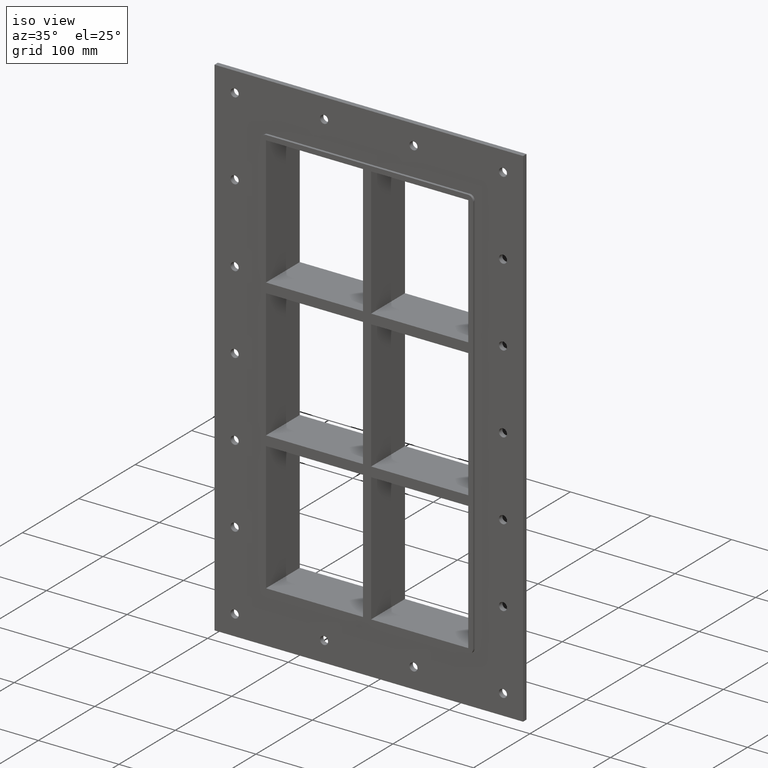
[diagram: clean part render]
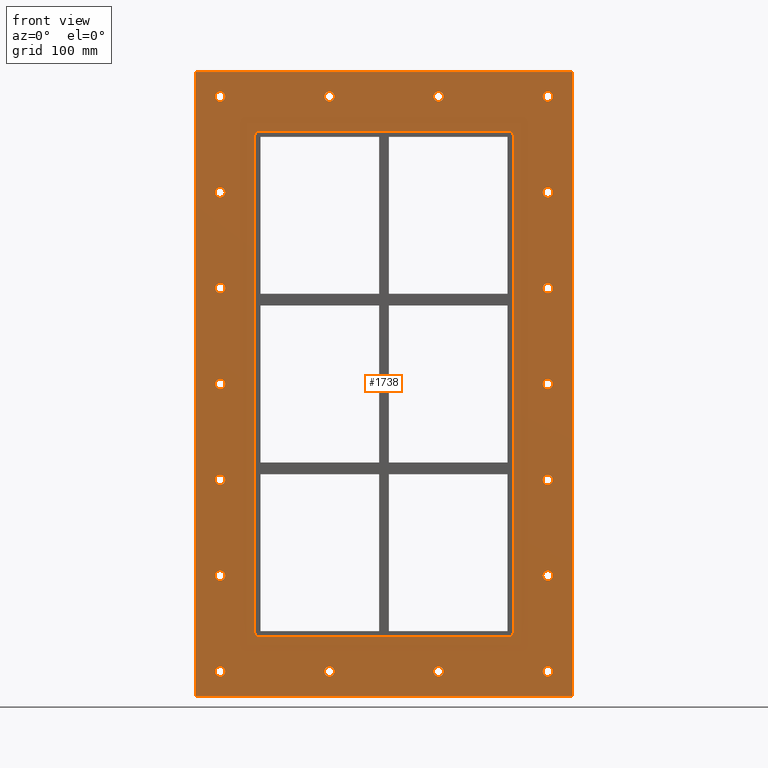
[diagram: tour spotlight — one face highlighted and labeled with its STEP entity id]
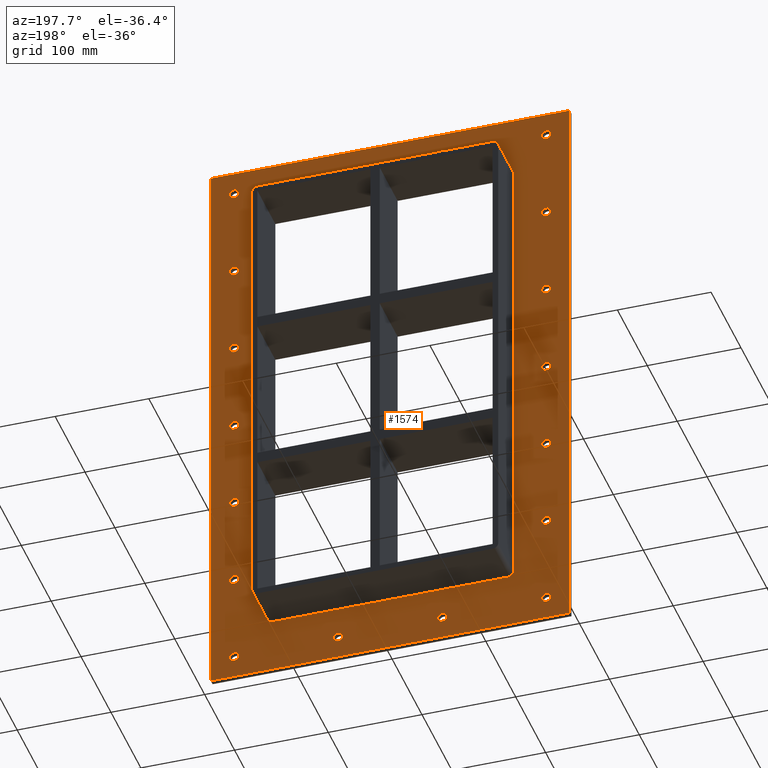
[diagram: tour spotlight — one face highlighted and labeled with its STEP entity id]
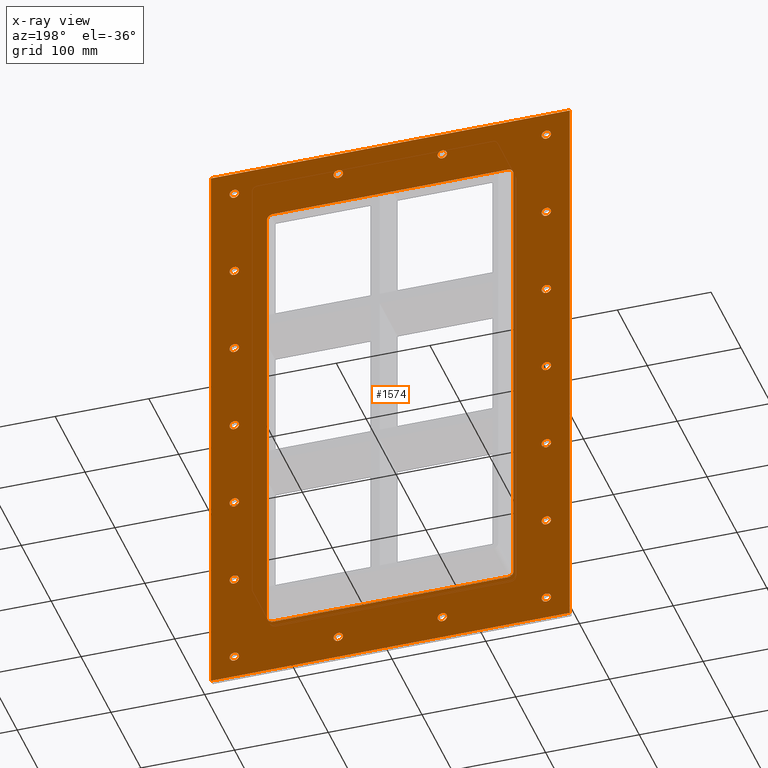
[diagram: x-ray of the same camera — body ghosted, this tour face saturated]
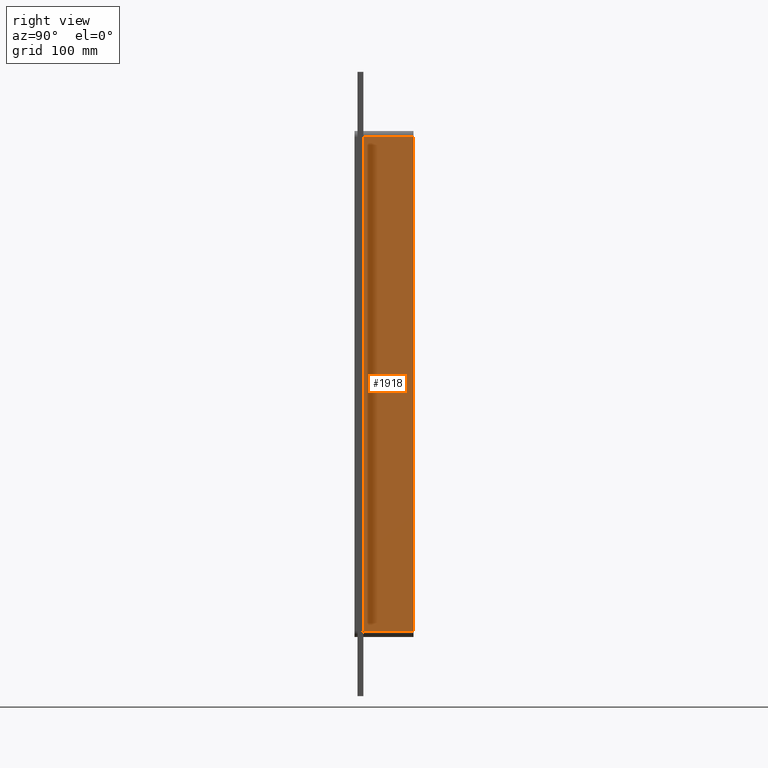
[diagram: tour spotlight — one face highlighted and labeled with its STEP entity id]
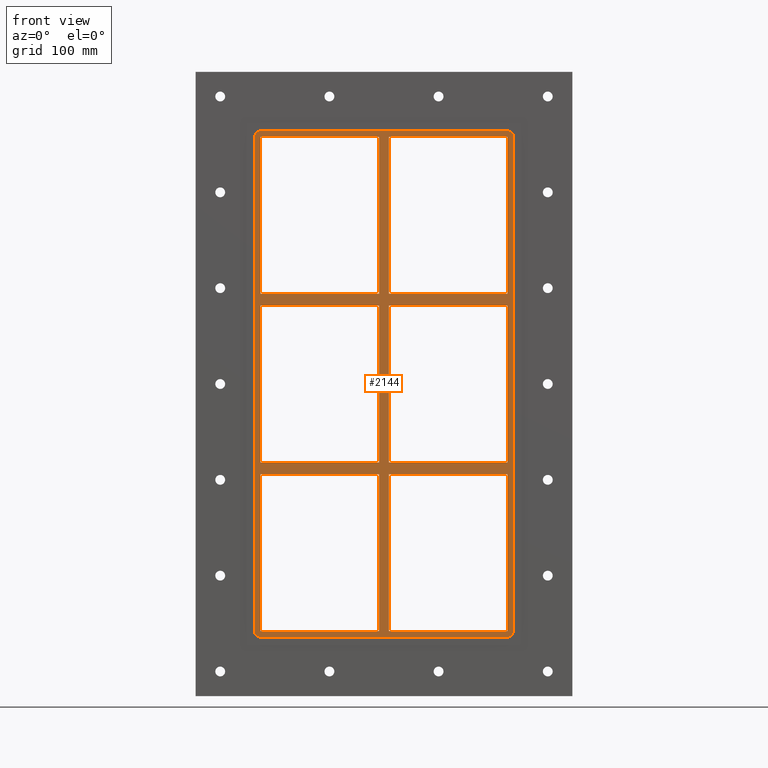
[diagram: tour spotlight — one face highlighted and labeled with its STEP entity id]
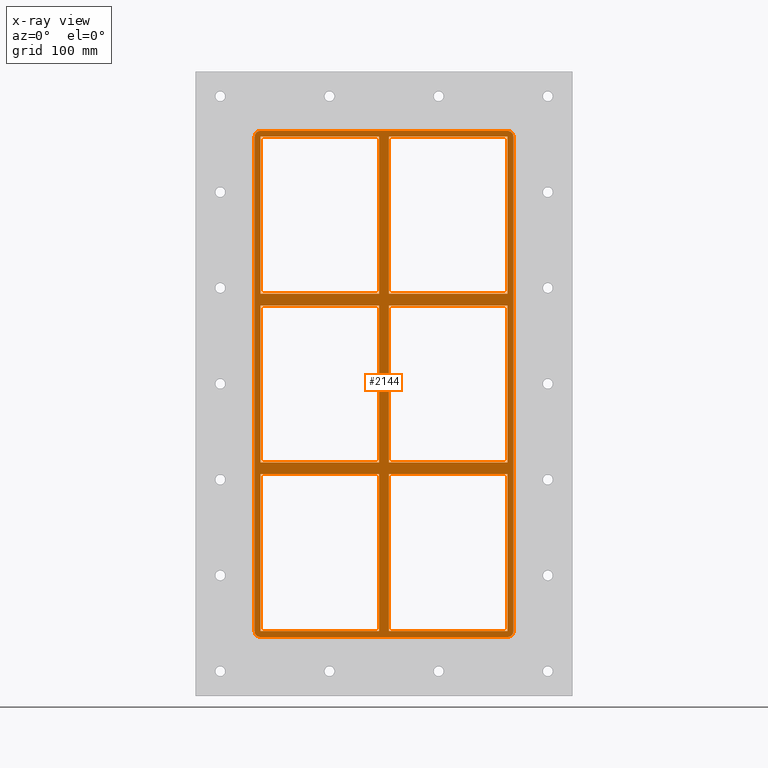
[diagram: x-ray of the same camera — body ghosted, this tour face saturated]
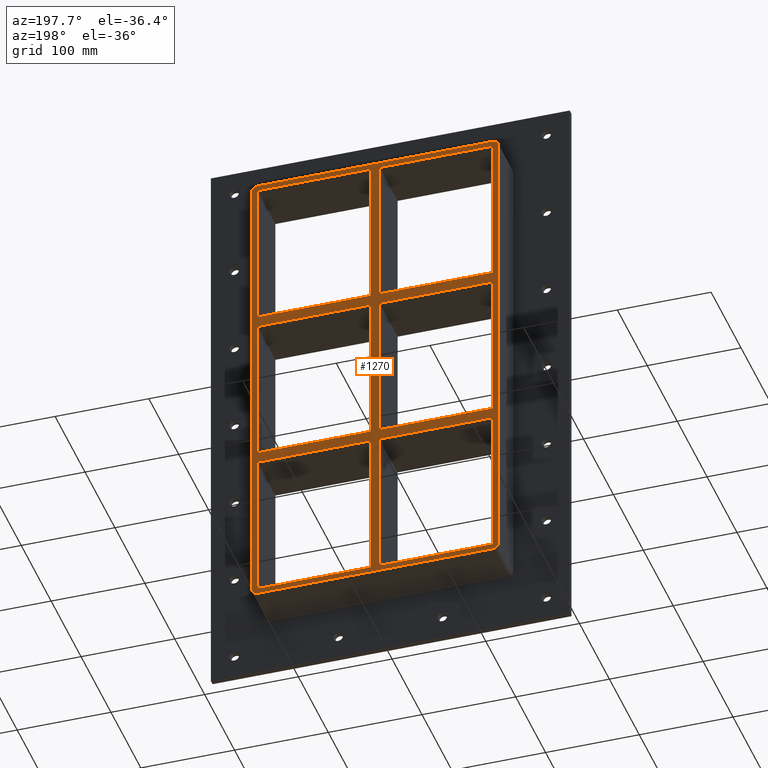
[diagram: tour spotlight — one face highlighted and labeled with its STEP entity id]
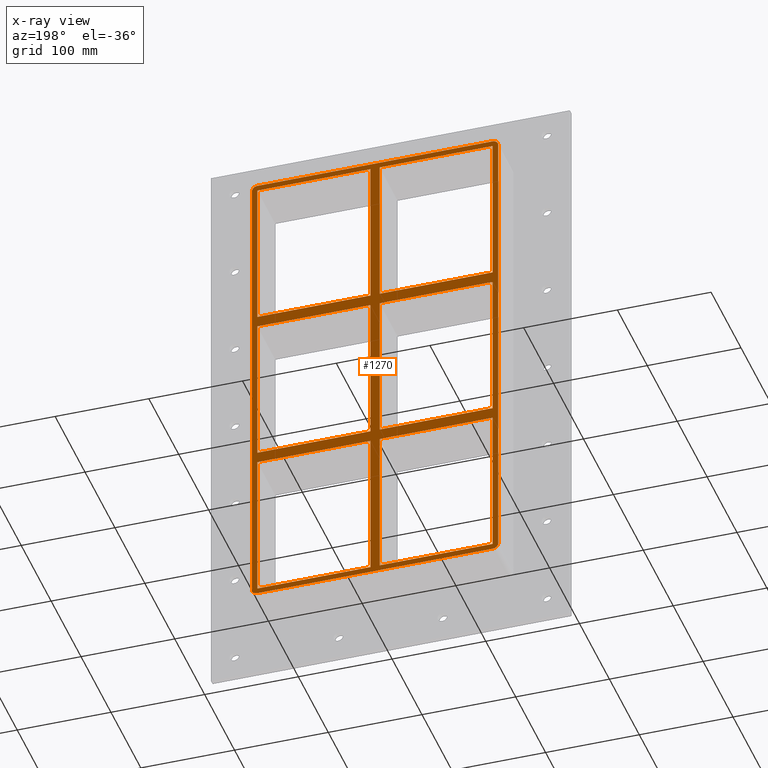
[diagram: x-ray of the same camera — body ghosted, this tour face saturated]
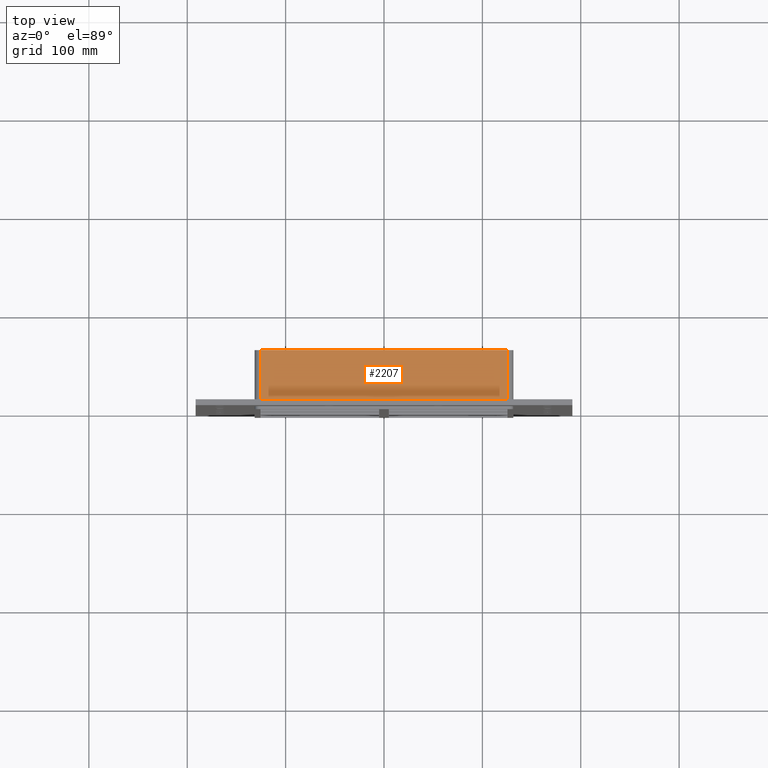
[diagram: tour spotlight — one face highlighted and labeled with its STEP entity id]
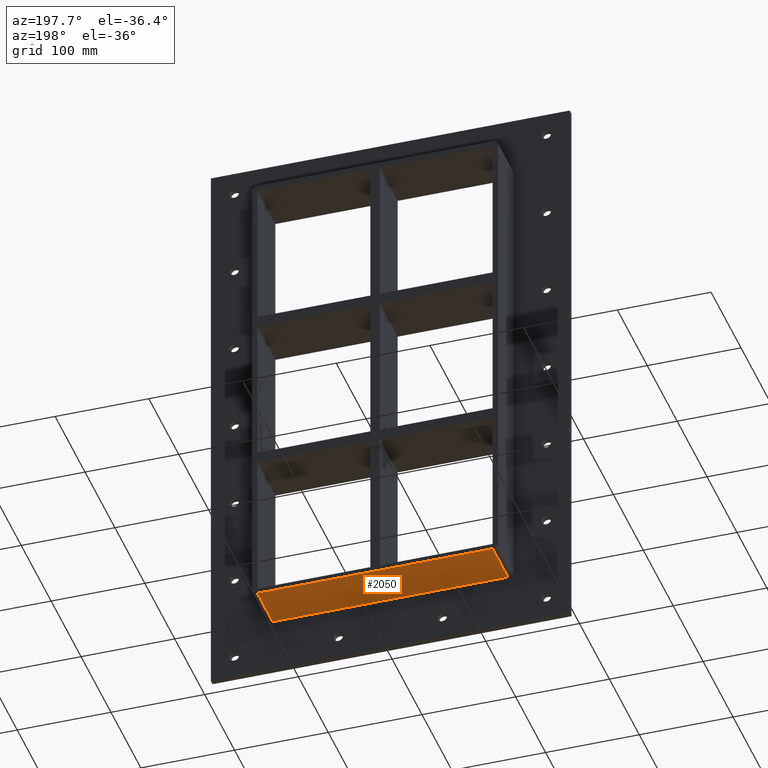
[diagram: tour spotlight — one face highlighted and labeled with its STEP entity id]
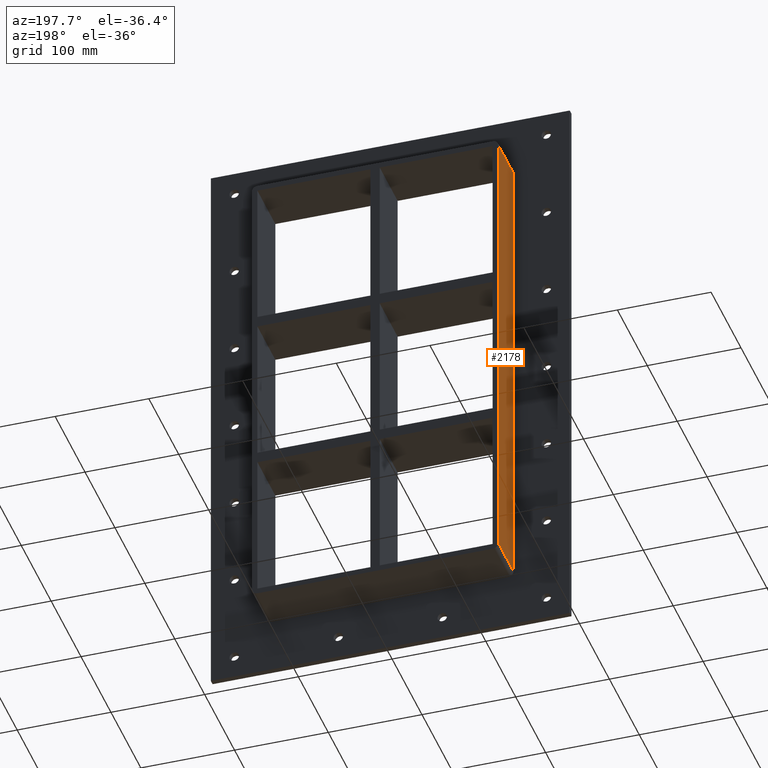
[diagram: tour spotlight — one face highlighted and labeled with its STEP entity id]
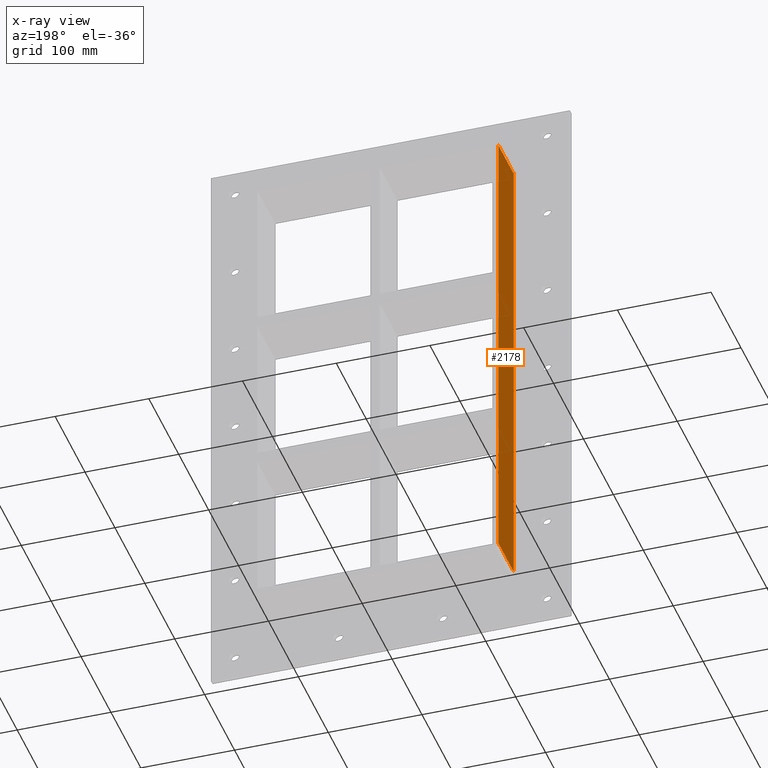
[diagram: x-ray of the same camera — body ghosted, this tour face saturated]
A machine part: a face-by-face anatomy tour. The part has 66 B-rep faces; the first image is the clean iso view, then the 8 largest visible faces are spotlighted one at a time (largest first), each with its STEP entity span.

Face 1 — front view, entity #1738. In plain terms, the highlighted planar face has unit normal (0, 1, 0).
Definition (entity closure, byte-faithful):
#84=CARTESIAN_POINT('',(-161.50000000000003,0.0,-292.25));
#85=VERTEX_POINT('',#84);
#86=CARTESIAN_POINT('',(-166.50000000000003,0.0,-292.25));
#87=DIRECTION('',(0.0,1.0,0.0));
#88=DIRECTION('',(1.0,0.0,0.0));
#89=AXIS2_PLACEMENT_3D('',#86,#87,#88);
#90=CIRCLE('',#89,5.0);
#91=EDGE_CURVE('',#85,#85,#90,.T.);
#112=CARTESIAN_POINT('',(171.50000000000003,0.0,-194.82999999999993));
#113=VERTEX_POINT('',#112);
#114=CARTESIAN_POINT('',(166.50000000000003,0.0,-194.82999999999993));
#115=DIRECTION('',(0.0,1.0,0.0));
#116=DIRECTION('',(1.0,0.0,0.0));
#117=AXIS2_PLACEMENT_3D('',#114,#115,#116);
#118=CIRCLE('',#117,5.0);
#119=EDGE_CURVE('',#113,#113,#118,.T.);
#140=CARTESIAN_POINT('',(-161.50000000000003,0.0,-194.82999999999993));
#141=VERTEX_POINT('',#140);
#142=CARTESIAN_POINT('',(-166.50000000000003,0.0,-194.82999999999993));
#143=DIRECTION('',(0.0,1.0,0.0));
#144=DIRECTION('',(1.0,0.0,0.0));
#145=AXIS2_PLACEMENT_3D('',#142,#143,#144);
#146=CIRCLE('',#145,5.0);
#147=EDGE_CURVE('',#141,#141,#146,.T.);
#168=CARTESIAN_POINT('',(171.50000000000003,0.0,-97.409999999999926));
#169=VERTEX_POINT('',#168);
#170=CARTESIAN_POINT('',(166.50000000000003,0.0,-97.409999999999926));
#171=DIRECTION('',(0.0,1.0,0.0));
#172=DIRECTION('',(1.0,0.0,0.0));
#173=AXIS2_PLACEMENT_3D('',#170,#171,#172);
#174=CIRCLE('',#173,5.0);
#175=EDGE_CURVE('',#169,#169,#174,.T.);
#196=CARTESIAN_POINT('',(-161.50000000000003,0.0,-97.409999999999926));
#197=VERTEX_POINT('',#196);
#198=CARTESIAN_POINT('',(-166.50000000000003,0.0,-97.409999999999926));
#199=DIRECTION('',(0.0,1.0,0.0));
#200=DIRECTION('',(1.0,0.0,0.0));
#201=AXIS2_PLACEMENT_3D('',#198,#199,#200);
#202=CIRCLE('',#201,5.0);
#203=EDGE_CURVE('',#197,#197,#202,.T.);
#224=CARTESIAN_POINT('',(171.50000000000003,0.0,0.010000000000083));
#225=VERTEX_POINT('',#224);
#226=CARTESIAN_POINT('',(166.50000000000003,0.0,0.010000000000083));
#227=DIRECTION('',(0.0,1.0,0.0));
#228=DIRECTION('',(1.0,0.0,0.0));
#229=AXIS2_PLACEMENT_3D('',#226,#227,#228);
#230=CIRCLE('',#229,5.0);
#231=EDGE_CURVE('',#225,#225,#230,.T.);
#252=CARTESIAN_POINT('',(-161.50000000000003,0.0,0.010000000000083));
#253=VERTEX_POINT('',#252);
#254=CARTESIAN_POINT('',(-166.50000000000003,0.0,0.010000000000083));
#255=DIRECTION('',(0.0,1.0,0.0));
#256=DIRECTION('',(1.0,0.0,0.0));
#257=AXIS2_PLACEMENT_3D('',#254,#255,#256);
#258=CIRCLE('',#257,5.0);
#259=EDGE_CURVE('',#253,#253,#258,.T.);
#280=CARTESIAN_POINT('',(171.50000000000003,0.0,97.430000000000092));
#281=VERTEX_POINT('',#280);
#282=CARTESIAN_POINT('',(166.50000000000003,0.0,97.430000000000092));
#283=DIRECTION('',(0.0,1.0,0.0));
#284=DIRECTION('',(1.0,0.0,0.0));
#285=AXIS2_PLACEMENT_3D('',#282,#283,#284);
#286=CIRCLE('',#285,5.0);
#287=EDGE_CURVE('',#281,#281,#286,.T.);
#308=CARTESIAN_POINT('',(-161.50000000000003,0.0,97.430000000000092));
#309=VERTEX_POINT('',#308);
#310=CARTESIAN_POINT('',(-166.50000000000003,0.0,97.430000000000092));
#311=DIRECTION('',(0.0,1.0,0.0));
#312=DIRECTION('',(1.0,0.0,0.0));
#313=AXIS2_PLACEMENT_3D('',#310,#311,#312);
#314=CIRCLE('',#313,5.0);
#315=EDGE_CURVE('',#309,#309,#314,.T.);
#336=CARTESIAN_POINT('',(171.50000000000003,0.0,194.85000000000011));
#337=VERTEX_POINT('',#336);
#338=CARTESIAN_POINT('',(166.50000000000003,0.0,194.85000000000011));
#339=DIRECTION('',(0.0,1.0,0.0));
#340=DIRECTION('',(1.0,0.0,0.0));
#341=AXIS2_PLACEMENT_3D('',#338,#339,#340);
#342=CIRCLE('',#341,5.0);
#343=EDGE_CURVE('',#337,#337,#342,.T.);
#364=CARTESIAN_POINT('',(-161.50000000000003,0.0,194.85000000000011));
#365=VERTEX_POINT('',#364);
#366=CARTESIAN_POINT('',(-166.50000000000003,0.0,194.85000000000011));
#367=DIRECTION('',(0.0,1.0,0.0));
#368=DIRECTION('',(1.0,0.0,0.0));
#369=AXIS2_PLACEMENT_3D('',#366,#367,#368);
#370=CIRCLE('',#369,5.0);
#371=EDGE_CURVE('',#365,#365,#370,.T.);
#392=CARTESIAN_POINT('',(-50.500000000000007,0.0,292.2700000000001));
#393=VERTEX_POINT('',#392);
#394=CARTESIAN_POINT('',(-55.500000000000007,0.0,292.2700000000001));
#395=DIRECTION('',(0.0,1.0,0.0));
#396=DIRECTION('',(1.0,0.0,0.0));
#397=AXIS2_PLACEMENT_3D('',#394,#395,#396);
#398=CIRCLE('',#397,5.0);
#399=EDGE_CURVE('',#393,#393,#398,.T.);
#420=CARTESIAN_POINT('',(-50.499999999999972,0.0,-292.24999999999994));
#421=VERTEX_POINT('',#420);
#422=CARTESIAN_POINT('',(-55.499999999999972,0.0,-292.24999999999994));
#423=DIRECTION('',(0.0,1.0,0.0));
#424=DIRECTION('',(1.0,0.0,0.0));
#425=AXIS2_PLACEMENT_3D('',#422,#423,#424);
#426=CIRCLE('',#425,5.0);
#427=EDGE_CURVE('',#421,#421,#426,.T.);
#448=CARTESIAN_POINT('',(60.500000000000007,0.0,292.2700000000001));
#449=VERTEX_POINT('',#448);
#450=CARTESIAN_POINT('',(55.500000000000007,0.0,292.2700000000001));
#451=DIRECTION('',(0.0,1.0,0.0));
#452=DIRECTION('',(1.0,0.0,0.0));
#453=AXIS2_PLACEMENT_3D('',#450,#451,#452);
#454=CIRCLE('',#453,5.0);
#455=EDGE_CURVE('',#449,#449,#454,.T.);
#476=CARTESIAN_POINT('',(60.500000000000043,0.0,-292.24999999999994));
#477=VERTEX_POINT('',#476);
#478=CARTESIAN_POINT('',(55.500000000000043,0.0,-292.24999999999994));
#479=DIRECTION('',(0.0,1.0,0.0));
#480=DIRECTION('',(1.0,0.0,0.0));
#481=AXIS2_PLACEMENT_3D('',#478,#479,#480);
#482=CIRCLE('',#481,5.0);
#483=EDGE_CURVE('',#477,#477,#482,.T.);
#504=CARTESIAN_POINT('',(171.50000000000006,0.0,-292.24999999999994));
#505=VERTEX_POINT('',#504);
#506=CARTESIAN_POINT('',(166.50000000000006,0.0,-292.24999999999994));
#507=DIRECTION('',(0.0,1.0,0.0));
#508=DIRECTION('',(1.0,0.0,0.0));
#509=AXIS2_PLACEMENT_3D('',#506,#507,#508);
#510=CIRCLE('',#509,5.0);
#511=EDGE_CURVE('',#505,#505,#510,.T.);
#532=CARTESIAN_POINT('',(-161.50000000000003,0.0,292.2700000000001));
#533=VERTEX_POINT('',#532);
#534=CARTESIAN_POINT('',(-166.50000000000003,0.0,292.2700000000001));
#535=DIRECTION('',(0.0,1.0,0.0));
#536=DIRECTION('',(1.0,0.0,0.0));
#537=AXIS2_PLACEMENT_3D('',#534,#535,#536);
#538=CIRCLE('',#537,5.0);
#539=EDGE_CURVE('',#533,#533,#538,.T.);
#560=CARTESIAN_POINT('',(171.50000000000003,0.0,292.2700000000001));
#561=VERTEX_POINT('',#560);
#562=CARTESIAN_POINT('',(166.50000000000003,0.0,292.2700000000001));
#563=DIRECTION('',(0.0,1.0,0.0));
#564=DIRECTION('',(1.0,0.0,0.0));
#565=AXIS2_PLACEMENT_3D('',#562,#563,#564);
#566=CIRCLE('',#565,5.0);
#567=EDGE_CURVE('',#561,#561,#566,.T.);
#1575=CARTESIAN_POINT('',(0.0,0.0,3.621673E-014));
#1576=DIRECTION('',(0.0,1.0,0.0));
#1577=DIRECTION('',(0.0,0.0,1.0));
#1578=AXIS2_PLACEMENT_3D('',#1575,#1576,#1577);
#1579=PLANE('',#1578);
#1580=CARTESIAN_POINT('',(-191.5,0.0,317.25));
#1581=VERTEX_POINT('',#1580);
#1582=CARTESIAN_POINT('',(191.5,0.0,317.25));
#1583=VERTEX_POINT('',#1582);
#1584=CARTESIAN_POINT('',(-191.5,0.0,317.25));
#1585=DIRECTION('',(1.0,0.0,0.0));
#1586=VECTOR('',#1585,383.0);
#1587=LINE('',#1584,#1586);
#1588=EDGE_CURVE('',#1581,#1583,#1587,.T.);
#1589=ORIENTED_EDGE('',*,*,#1588,.F.);
#1590=CARTESIAN_POINT('',(-191.5,0.0,-317.24999999999994));
#1591=VERTEX_POINT('',#1590);
#1592=CARTESIAN_POINT('',(-191.5,0.0,-317.24999999999994));
#1593=DIRECTION('',(0.0,0.0,1.0));
#1594=VECTOR('',#1593,634.5);
#1595=LINE('',#1592,#1594);
#1596=EDGE_CURVE('',#1591,#1581,#1595,.T.);
#1597=ORIENTED_EDGE('',*,*,#1596,.F.);
#1598=CARTESIAN_POINT('',(191.5,0.0,-317.24999999999994));
#1599=VERTEX_POINT('',#1598);
#1600=CARTESIAN_POINT('',(191.5,0.0,-317.24999999999994));
#1601=DIRECTION('',(-1.0,0.0,0.0));
#1602=VECTOR('',#1601,383.0);
#1603=LINE('',#1600,#1602);
#1604=EDGE_CURVE('',#1599,#1591,#1603,.T.);
#1605=ORIENTED_EDGE('',*,*,#1604,.F.);
#1606=CARTESIAN_POINT('',(191.5,0.0,317.25));
#1607=DIRECTION('',(0.0,0.0,-1.0));
#1608=VECTOR('',#1607,634.5);
#1609=LINE('',#1606,#1608);
#1610=EDGE_CURVE('',#1583,#1599,#1609,.T.);
#1611=ORIENTED_EDGE('',*,*,#1610,.F.);
#1612=EDGE_LOOP('',(#1589,#1597,#1605,#1611));
#1613=FACE_OUTER_BOUND('',#1612,.T.);
#1614=ORIENTED_EDGE('',*,*,#91,.T.);
#1615=EDGE_LOOP('',(#1614));
#1616=FACE_BOUND('',#1615,.T.);
#1617=ORIENTED_EDGE('',*,*,#119,.T.);
#1618=EDGE_LOOP('',(#1617));
#1619=FACE_BOUND('',#1618,.T.);
#1620=ORIENTED_EDGE('',*,*,#147,.T.);
#1621=EDGE_LOOP('',(#1620));
#1622=FACE_BOUND('',#1621,.T.);
#1623=ORIENTED_EDGE('',*,*,#175,.T.);
#1624=EDGE_LOOP('',(#1623));
#1625=FACE_BOUND('',#1624,.T.);
#1626=ORIENTED_EDGE('',*,*,#203,.T.);
#1627=EDGE_LOOP('',(#1626));
#1628=FACE_BOUND('',#1627,.T.);
#1629=ORIENTED_EDGE('',*,*,#231,.T.);
#1630=EDGE_LOOP('',(#1629));
#1631=FACE_BOUND('',#1630,.T.);
#1632=ORIENTED_EDGE('',*,*,#259,.T.);
#1633=EDGE_LOOP('',(#1632));
#1634=FACE_BOUND('',#1633,.T.);
#1635=ORIENTED_EDGE('',*,*,#287,.T.);
#1636=EDGE_LOOP('',(#1635));
#1637=FACE_BOUND('',#1636,.T.);
#1638=ORIENTED_EDGE('',*,*,#315,.T.);
#1639=EDGE_LOOP('',(#1638));
#1640=FACE_BOUND('',#1639,.T.);
#1641=ORIENTED_EDGE('',*,*,#343,.T.);
#1642=EDGE_LOOP('',(#1641));
#1643=FACE_BOUND('',#1642,.T.);
#1644=ORIENTED_EDGE('',*,*,#371,.T.);
#1645=EDGE_LOOP('',(#1644));
#1646=FACE_BOUND('',#1645,.T.);
#1647=ORIENTED_EDGE('',*,*,#399,.T.);
#1648=EDGE_LOOP('',(#1647));
#1649=FACE_BOUND('',#1648,.T.);
#1650=ORIENTED_EDGE('',*,*,#427,.T.);
#1651=EDGE_LOOP('',(#1650));
#1652=FACE_BOUND('',#1651,.T.);
#1653=ORIENTED_EDGE('',*,*,#455,.T.);
#1654=EDGE_LOOP('',(#1653));
#1655=FACE_BOUND('',#1654,.T.);
#1656=ORIENTED_EDGE('',*,*,#483,.T.);
#1657=EDGE_LOOP('',(#1656));
#1658=FACE_BOUND('',#1657,.T.);
#1659=ORIENTED_EDGE('',*,*,#511,.T.);
#1660=EDGE_LOOP('',(#1659));
#1661=FACE_BOUND('',#1660,.T.);
#1662=ORIENTED_EDGE('',*,*,#539,.T.);
#1663=EDGE_LOOP('',(#1662));
#1664=FACE_BOUND('',#1663,.T.);
#1665=ORIENTED_EDGE('',*,*,#567,.T.);
#1666=EDGE_LOOP('',(#1665));
#1667=FACE_BOUND('',#1666,.T.);
#1668=CARTESIAN_POINT('',(-131.5,0.0,-251.25));
#1669=VERTEX_POINT('',#1668);
#1670=CARTESIAN_POINT('',(-125.5,0.0,-257.25));
#1671=VERTEX_POINT('',#1670);
#1672=CARTESIAN_POINT('',(-125.5,0.0,-251.25));
#1673=DIRECTION('',(0.0,-1.0,0.0));
#1674=DIRECTION('',(-0.707106781186548,0.0,-0.707106781186548));
#1675=AXIS2_PLACEMENT_3D('',#1672,#1673,#1674);
#1676=CIRCLE('',#1675,6.000000000000002);
#1677=EDGE_CURVE('',#1669,#1671,#1676,.T.);
#1678=ORIENTED_EDGE('',*,*,#1677,.F.);
#1679=CARTESIAN_POINT('',(-131.5,0.0,251.25));
#1680=VERTEX_POINT('',#1679);
#1681=CARTESIAN_POINT('',(-131.5,0.0,251.25));
#1682=DIRECTION('',(0.0,0.0,-1.0));
#1683=VECTOR('',#1682,502.5);
#1684=LINE('',#1681,#1683);
#1685=EDGE_CURVE('',#1680,#1669,#1684,.T.);
#1686=ORIENTED_EDGE('',*,*,#1685,.F.);
#1687=CARTESIAN_POINT('',(-125.5,0.0,257.25));
#1688=VERTEX_POINT('',#1687);
#1689=CARTESIAN_POINT('',(-125.5,0.0,251.25));
#1690=DIRECTION('',(0.0,-1.0,0.0));
#1691=DIRECTION('',(-0.707106781186548,0.0,0.707106781186548));
#1692=AXIS2_PLACEMENT_3D('',#1689,#1690,#1691);
#1693=CIRCLE('',#1692,6.000000000000002);
#1694=EDGE_CURVE('',#1688,#1680,#1693,.T.);
#1695=ORIENTED_EDGE('',*,*,#1694,.F.);
#1696=CARTESIAN_POINT('',(125.50000000000003,0.0,257.25));
#1697=VERTEX_POINT('',#1696);
#1698=CARTESIAN_POINT('',(125.50000000000003,0.0,257.25));
#1699=DIRECTION('',(-1.0,0.0,0.0));
#1700=VECTOR('',#1699,251.00000000000003);
#1701=LINE('',#1698,#1700);
#1702=EDGE_CURVE('',#1697,#1688,#1701,.T.);
#1703=ORIENTED_EDGE('',*,*,#1702,.F.);
#1704=CARTESIAN_POINT('',(131.50000000000003,0.0,251.25));
#1705=VERTEX_POINT('',#1704);
#1706=CARTESIAN_POINT('',(125.50000000000003,0.0,251.25));
#1707=DIRECTION('',(0.0,-1.0,0.0));
#1708=DIRECTION('',(0.707106781186545,0.0,0.70710678118655));
#1709=AXIS2_PLACEMENT_3D('',#1706,#1707,#1708);
#1710=CIRCLE('',#1709,6.000000000000001);
#1711=EDGE_CURVE('',#1705,#1697,#1710,.T.);
#1712=ORIENTED_EDGE('',*,*,#1711,.F.);
#1713=CARTESIAN_POINT('',(131.5,0.0,-251.25));
#1714=VERTEX_POINT('',#1713);
#1715=CARTESIAN_POINT('',(131.50000000000003,0.0,-251.25000000000003));
#1716=DIRECTION('',(0.0,0.0,1.0));
#1717=VECTOR('',#1716,502.5);
#1718=LINE('',#1715,#1717);
#1719=EDGE_CURVE('',#1714,#1705,#1718,.T.);
#1720=ORIENTED_EDGE('',*,*,#1719,.F.);
#1721=CARTESIAN_POINT('',(125.5,0.0,-257.25));
#1722=VERTEX_POINT('',#1721);
#1723=CARTESIAN_POINT('',(125.5,0.0,-251.25));
#1724=DIRECTION('',(0.0,-1.0,0.0));
#1725=DIRECTION('',(0.707106781186548,0.0,-0.707106781186548));
#1726=AXIS2_PLACEMENT_3D('',#1723,#1724,#1725);
#1727=CIRCLE('',#1726,6.000000000000002);
#1728=EDGE_CURVE('',#1722,#1714,#1727,.T.);
#1729=ORIENTED_EDGE('',*,*,#1728,.F.);
#1730=CARTESIAN_POINT('',(-125.5,0.0,-257.25));
#1731=DIRECTION('',(1.0,0.0,0.0));
#1732=VECTOR('',#1731,251.0);
#1733=LINE('',#1730,#1732);
#1734=EDGE_CURVE('',#1671,#1722,#1733,.T.);
#1735=ORIENTED_EDGE('',*,*,#1734,.F.);
#1736=EDGE_LOOP('',(#1678,#1686,#1695,#1703,#1712,#1720,#1729,#1735));
#1737=FACE_BOUND('',#1736,.T.);
#1738=ADVANCED_FACE('',(#1613,#1616,#1619,#1622,#1625,#1628,#1631,#1634,#1637,#1640,#1643,#1646,#1649,#1652,#1655,#1658,#1661,#1664,#1667,#1737),#1579,.F.);

Face 2 — auxiliary view, entity #1574. An x-ray twin of the same camera follows (body ghosted, this face saturated) — the face is partly hidden behind the body. In plain terms, the highlighted planar face has unit normal (0, 1, 0).
Definition (entity closure, byte-faithful):
#73=CARTESIAN_POINT('',(-171.50000000000003,5.999999999999943,-292.25));
#74=VERTEX_POINT('',#73);
#75=CARTESIAN_POINT('',(-166.50000000000003,5.999999999999943,-292.25));
#76=DIRECTION('',(0.0,-1.0,0.0));
#77=DIRECTION('',(1.0,0.0,0.0));
#78=AXIS2_PLACEMENT_3D('',#75,#76,#77);
#79=CIRCLE('',#78,5.0);
#80=EDGE_CURVE('',#74,#74,#79,.T.);
#101=CARTESIAN_POINT('',(161.50000000000003,5.999999999999943,-194.82999999999993));
#102=VERTEX_POINT('',#101);
#103=CARTESIAN_POINT('',(166.50000000000003,5.999999999999943,-194.82999999999993));
#104=DIRECTION('',(0.0,-1.0,0.0));
#105=DIRECTION('',(1.0,0.0,0.0));
#106=AXIS2_PLACEMENT_3D('',#103,#104,#105);
#107=CIRCLE('',#106,5.0);
#108=EDGE_CURVE('',#102,#102,#107,.T.);
#129=CARTESIAN_POINT('',(-171.50000000000003,5.999999999999943,-194.82999999999993));
#130=VERTEX_POINT('',#129);
#131=CARTESIAN_POINT('',(-166.50000000000003,5.999999999999943,-194.82999999999993));
#132=DIRECTION('',(0.0,-1.0,0.0));
#133=DIRECTION('',(1.0,0.0,0.0));
#134=AXIS2_PLACEMENT_3D('',#131,#132,#133);
#135=CIRCLE('',#134,5.0);
#136=EDGE_CURVE('',#130,#130,#135,.T.);
#157=CARTESIAN_POINT('',(161.50000000000003,5.999999999999943,-97.409999999999926));
#158=VERTEX_POINT('',#157);
#159=CARTESIAN_POINT('',(166.50000000000003,5.999999999999943,-97.409999999999926));
#160=DIRECTION('',(0.0,-1.0,0.0));
#161=DIRECTION('',(1.0,0.0,0.0));
#162=AXIS2_PLACEMENT_3D('',#159,#160,#161);
#163=CIRCLE('',#162,5.0);
#164=EDGE_CURVE('',#158,#158,#163,.T.);
#185=CARTESIAN_POINT('',(-171.50000000000003,5.999999999999943,-97.409999999999926));
#186=VERTEX_POINT('',#185);
#187=CARTESIAN_POINT('',(-166.50000000000003,5.999999999999943,-97.409999999999926));
#188=DIRECTION('',(0.0,-1.0,0.0));
#189=DIRECTION('',(1.0,0.0,0.0));
#190=AXIS2_PLACEMENT_3D('',#187,#188,#189);
#191=CIRCLE('',#190,5.0);
#192=EDGE_CURVE('',#186,#186,#191,.T.);
#213=CARTESIAN_POINT('',(161.50000000000003,5.999999999999943,0.010000000000083));
#214=VERTEX_POINT('',#213);
#215=CARTESIAN_POINT('',(166.50000000000003,5.999999999999943,0.010000000000083));
#216=DIRECTION('',(0.0,-1.0,0.0));
#217=DIRECTION('',(1.0,0.0,0.0));
#218=AXIS2_PLACEMENT_3D('',#215,#216,#217);
#219=CIRCLE('',#218,5.0);
#220=EDGE_CURVE('',#214,#214,#219,.T.);
#241=CARTESIAN_POINT('',(-171.50000000000003,5.999999999999943,0.010000000000083));
#242=VERTEX_POINT('',#241);
#243=CARTESIAN_POINT('',(-166.50000000000003,5.999999999999943,0.010000000000083));
#244=DIRECTION('',(0.0,-1.0,0.0));
#245=DIRECTION('',(1.0,0.0,0.0));
#246=AXIS2_PLACEMENT_3D('',#243,#244,#245);
#247=CIRCLE('',#246,5.0);
#248=EDGE_CURVE('',#242,#242,#247,.T.);
#269=CARTESIAN_POINT('',(161.50000000000003,5.999999999999943,97.430000000000092));
#270=VERTEX_POINT('',#269);
#271=CARTESIAN_POINT('',(166.50000000000003,5.999999999999943,97.430000000000092));
#272=DIRECTION('',(0.0,-1.0,0.0));
#273=DIRECTION('',(1.0,0.0,0.0));
#274=AXIS2_PLACEMENT_3D('',#271,#272,#273);
#275=CIRCLE('',#274,5.0);
#276=EDGE_CURVE('',#270,#270,#275,.T.);
#297=CARTESIAN_POINT('',(-171.50000000000003,5.999999999999943,97.430000000000092));
#298=VERTEX_POINT('',#297);
#299=CARTESIAN_POINT('',(-166.50000000000003,5.999999999999943,97.430000000000092));
#300=DIRECTION('',(0.0,-1.0,0.0));
#301=DIRECTION('',(1.0,0.0,0.0));
#302=AXIS2_PLACEMENT_3D('',#299,#300,#301);
#303=CIRCLE('',#302,5.0);
#304=EDGE_CURVE('',#298,#298,#303,.T.);
#325=CARTESIAN_POINT('',(161.50000000000003,5.999999999999943,194.85000000000011));
#326=VERTEX_POINT('',#325);
#327=CARTESIAN_POINT('',(166.50000000000003,5.999999999999943,194.85000000000011));
#328=DIRECTION('',(0.0,-1.0,0.0));
#329=DIRECTION('',(1.0,0.0,0.0));
#330=AXIS2_PLACEMENT_3D('',#327,#328,#329);
#331=CIRCLE('',#330,5.0);
#332=EDGE_CURVE('',#326,#326,#331,.T.);
#353=CARTESIAN_POINT('',(-171.50000000000003,5.999999999999943,194.85000000000011));
#354=VERTEX_POINT('',#353);
#355=CARTESIAN_POINT('',(-166.50000000000003,5.999999999999943,194.85000000000011));
#356=DIRECTION('',(0.0,-1.0,0.0));
#357=DIRECTION('',(1.0,0.0,0.0));
#358=AXIS2_PLACEMENT_3D('',#355,#356,#357);
#359=CIRCLE('',#358,5.0);
#360=EDGE_CURVE('',#354,#354,#359,.T.);
#381=CARTESIAN_POINT('',(-60.500000000000007,5.999999999999943,292.2700000000001));
#382=VERTEX_POINT('',#381);
#383=CARTESIAN_POINT('',(-55.500000000000007,5.999999999999943,292.2700000000001));
#384=DIRECTION('',(0.0,-1.0,0.0));
#385=DIRECTION('',(1.0,0.0,0.0));
#386=AXIS2_PLACEMENT_3D('',#383,#384,#385);
#387=CIRCLE('',#386,5.0);
#388=EDGE_CURVE('',#382,#382,#387,.T.);
#409=CARTESIAN_POINT('',(-60.499999999999972,5.999999999999943,-292.24999999999994));
#410=VERTEX_POINT('',#409);
#411=CARTESIAN_POINT('',(-55.499999999999972,5.999999999999943,-292.24999999999994));
#412=DIRECTION('',(0.0,-1.0,0.0));
#413=DIRECTION('',(1.0,0.0,0.0));
#414=AXIS2_PLACEMENT_3D('',#411,#412,#413);
#415=CIRCLE('',#414,5.0);
#416=EDGE_CURVE('',#410,#410,#415,.T.);
#437=CARTESIAN_POINT('',(50.500000000000007,5.999999999999943,292.2700000000001));
#438=VERTEX_POINT('',#437);
#439=CARTESIAN_POINT('',(55.500000000000007,5.999999999999943,292.2700000000001));
#440=DIRECTION('',(0.0,-1.0,0.0));
#441=DIRECTION('',(1.0,0.0,0.0));
#442=AXIS2_PLACEMENT_3D('',#439,#440,#441);
#443=CIRCLE('',#442,5.0);
#444=EDGE_CURVE('',#438,#438,#443,.T.);
#465=CARTESIAN_POINT('',(50.500000000000043,5.999999999999943,-292.24999999999994));
#466=VERTEX_POINT('',#465);
#467=CARTESIAN_POINT('',(55.500000000000043,5.999999999999943,-292.24999999999994));
#468=DIRECTION('',(0.0,-1.0,0.0));
#469=DIRECTION('',(1.0,0.0,0.0));
#470=AXIS2_PLACEMENT_3D('',#467,#468,#469);
#471=CIRCLE('',#470,5.0);
#472=EDGE_CURVE('',#466,#466,#471,.T.);
#493=CARTESIAN_POINT('',(161.50000000000006,5.999999999999943,-292.24999999999994));
#494=VERTEX_POINT('',#493);
#495=CARTESIAN_POINT('',(166.50000000000006,5.999999999999943,-292.24999999999994));
#496=DIRECTION('',(0.0,-1.0,0.0));
#497=DIRECTION('',(1.0,0.0,0.0));
#498=AXIS2_PLACEMENT_3D('',#495,#496,#497);
#499=CIRCLE('',#498,5.0);
#500=EDGE_CURVE('',#494,#494,#499,.T.);
#521=CARTESIAN_POINT('',(-171.50000000000003,5.999999999999943,292.2700000000001));
#522=VERTEX_POINT('',#521);
#523=CARTESIAN_POINT('',(-166.50000000000003,5.999999999999943,292.2700000000001));
#524=DIRECTION('',(0.0,-1.0,0.0));
#525=DIRECTION('',(1.0,0.0,0.0));
#526=AXIS2_PLACEMENT_3D('',#523,#524,#525);
#527=CIRCLE('',#526,5.0);
#528=EDGE_CURVE('',#522,#522,#527,.T.);
#549=CARTESIAN_POINT('',(161.50000000000003,5.999999999999943,292.2700000000001));
#550=VERTEX_POINT('',#549);
#551=CARTESIAN_POINT('',(166.50000000000003,5.999999999999943,292.2700000000001));
#552=DIRECTION('',(0.0,-1.0,0.0));
#553=DIRECTION('',(1.0,0.0,0.0));
#554=AXIS2_PLACEMENT_3D('',#551,#552,#553);
#555=CIRCLE('',#554,5.0);
#556=EDGE_CURVE('',#550,#550,#555,.T.);
#1411=CARTESIAN_POINT('',(0.0,6.000000000000001,3.621673E-014));
#1412=DIRECTION('',(0.0,1.0,0.0));
#1413=DIRECTION('',(0.0,0.0,1.0));
#1414=AXIS2_PLACEMENT_3D('',#1411,#1412,#1413);
#1415=PLANE('',#1414);
#1416=CARTESIAN_POINT('',(-191.5,6.000000000000001,317.25));
#1417=VERTEX_POINT('',#1416);
#1418=CARTESIAN_POINT('',(191.5,6.000000000000001,317.25));
#1419=VERTEX_POINT('',#1418);
#1420=CARTESIAN_POINT('',(-191.5,6.000000000000001,317.25));
#1421=DIRECTION('',(1.0,0.0,0.0));
#1422=VECTOR('',#1421,383.0);
#1423=LINE('',#1420,#1422);
#1424=EDGE_CURVE('',#1417,#1419,#1423,.T.);
#1425=ORIENTED_EDGE('',*,*,#1424,.T.);
#1426=CARTESIAN_POINT('',(191.5,6.000000000000001,-317.24999999999994));
#1427=VERTEX_POINT('',#1426);
#1428=CARTESIAN_POINT('',(191.5,6.000000000000001,317.25));
#1429=DIRECTION('',(0.0,0.0,-1.0));
#1430=VECTOR('',#1429,634.5);
#1431=LINE('',#1428,#1430);
#1432=EDGE_CURVE('',#1419,#1427,#1431,.T.);
#1433=ORIENTED_EDGE('',*,*,#1432,.T.);
#1434=CARTESIAN_POINT('',(-191.5,6.000000000000001,-317.24999999999994));
#1435=VERTEX_POINT('',#1434);
#1436=CARTESIAN_POINT('',(191.5,6.000000000000001,-317.24999999999994));
#1437=DIRECTION('',(-1.0,0.0,0.0));
#1438=VECTOR('',#1437,383.0);
#1439=LINE('',#1436,#1438);
#1440=EDGE_CURVE('',#1427,#1435,#1439,.T.);
#1441=ORIENTED_EDGE('',*,*,#1440,.T.);
#1442=CARTESIAN_POINT('',(-191.5,6.000000000000001,-317.24999999999994));
#1443=DIRECTION('',(0.0,0.0,1.0));
#1444=VECTOR('',#1443,634.5);
#1445=LINE('',#1442,#1444);
#1446=EDGE_CURVE('',#1435,#1417,#1445,.T.);
#1447=ORIENTED_EDGE('',*,*,#1446,.T.);
#1448=EDGE_LOOP('',(#1425,#1433,#1441,#1447));
#1449=FACE_OUTER_BOUND('',#1448,.T.);
#1450=ORIENTED_EDGE('',*,*,#80,.T.);
#1451=EDGE_LOOP('',(#1450));
#1452=FACE_BOUND('',#1451,.T.);
#1453=ORIENTED_EDGE('',*,*,#108,.T.);
#1454=EDGE_LOOP('',(#1453));
#1455=FACE_BOUND('',#1454,.T.);
#1456=ORIENTED_EDGE('',*,*,#136,.T.);
#1457=EDGE_LOOP('',(#1456));
#1458=FACE_BOUND('',#1457,.T.);
#1459=ORIENTED_EDGE('',*,*,#164,.T.);
#1460=EDGE_LOOP('',(#1459));
#1461=FACE_BOUND('',#1460,.T.);
#1462=ORIENTED_EDGE('',*,*,#192,.T.);
#1463=EDGE_LOOP('',(#1462));
#1464=FACE_BOUND('',#1463,.T.);
#1465=ORIENTED_EDGE('',*,*,#220,.T.);
#1466=EDGE_LOOP('',(#1465));
#1467=FACE_BOUND('',#1466,.T.);
#1468=ORIENTED_EDGE('',*,*,#248,.T.);
#1469=EDGE_LOOP('',(#1468));
#1470=FACE_BOUND('',#1469,.T.);
#1471=ORIENTED_EDGE('',*,*,#276,.T.);
#1472=EDGE_LOOP('',(#1471));
#1473=FACE_BOUND('',#1472,.T.);
#1474=ORIENTED_EDGE('',*,*,#304,.T.);
#1475=EDGE_LOOP('',(#1474));
#1476=FACE_BOUND('',#1475,.T.);
#1477=ORIENTED_EDGE('',*,*,#332,.T.);
#1478=EDGE_LOOP('',(#1477));
#1479=FACE_BOUND('',#1478,.T.);
#1480=ORIENTED_EDGE('',*,*,#360,.T.);
#1481=EDGE_LOOP('',(#1480));
#1482=FACE_BOUND('',#1481,.T.);
#1483=ORIENTED_EDGE('',*,*,#388,.T.);
#1484=EDGE_LOOP('',(#1483));
#1485=FACE_BOUND('',#1484,.T.);
#1486=ORIENTED_EDGE('',*,*,#416,.T.);
#1487=EDGE_LOOP('',(#1486));
#1488=FACE_BOUND('',#1487,.T.);
#1489=ORIENTED_EDGE('',*,*,#444,.T.);
#1490=EDGE_LOOP('',(#1489));
#1491=FACE_BOUND('',#1490,.T.);
#1492=ORIENTED_EDGE('',*,*,#472,.T.);
#1493=EDGE_LOOP('',(#1492));
#1494=FACE_BOUND('',#1493,.T.);
#1495=ORIENTED_EDGE('',*,*,#500,.T.);
#1496=EDGE_LOOP('',(#1495));
#1497=FACE_BOUND('',#1496,.T.);
#1498=ORIENTED_EDGE('',*,*,#528,.T.);
#1499=EDGE_LOOP('',(#1498));
#1500=FACE_BOUND('',#1499,.T.);
#1501=ORIENTED_EDGE('',*,*,#556,.T.);
#1502=EDGE_LOOP('',(#1501));
#1503=FACE_BOUND('',#1502,.T.);
#1504=CARTESIAN_POINT('',(-125.5,6.000000000000001,-257.25));
#1505=VERTEX_POINT('',#1504);
#1506=CARTESIAN_POINT('',(-131.5,6.000000000000001,-251.25));
#1507=VERTEX_POINT('',#1506);
#1508=CARTESIAN_POINT('',(-125.5,6.000000000000001,-251.25));
#1509=DIRECTION('',(0.0,1.0,0.0));
#1510=DIRECTION('',(-0.707106781186548,0.0,-0.707106781186548));
#1511=AXIS2_PLACEMENT_3D('',#1508,#1509,#1510);
#1512=CIRCLE('',#1511,6.000000000000002);
#1513=EDGE_CURVE('',#1505,#1507,#1512,.T.);
#1514=ORIENTED_EDGE('',*,*,#1513,.F.);
#1515=CARTESIAN_POINT('',(125.5,6.000000000000001,-257.25));
#1516=VERTEX_POINT('',#1515);
#1517=CARTESIAN_POINT('',(125.5,6.000000000000001,-257.25));
#1518=DIRECTION('',(-1.0,0.0,0.0));
#1519=VECTOR('',#1518,251.0);
#1520=LINE('',#1517,#1519);
#1521=EDGE_CURVE('',#1516,#1505,#1520,.T.);
#1522=ORIENTED_EDGE('',*,*,#1521,.F.);
#1523=CARTESIAN_POINT('',(131.5,6.000000000000001,-251.25));
#1524=VERTEX_POINT('',#1523);
#1525=CARTESIAN_POINT('',(125.5,6.000000000000001,-251.25));
#1526=DIRECTION('',(0.0,1.0,0.0));
#1527=DIRECTION('',(0.707106781186548,0.0,-0.707106781186548));
#1528=AXIS2_PLACEMENT_3D('',#1525,#1526,#1527);
#1529=CIRCLE('',#1528,6.000000000000002);
#1530=EDGE_CURVE('',#1524,#1516,#1529,.T.);
#1531=ORIENTED_EDGE('',*,*,#1530,.F.);
#1532=CARTESIAN_POINT('',(131.50000000000003,6.000000000000001,251.25));
#1533=VERTEX_POINT('',#1532);
#1534=CARTESIAN_POINT('',(131.50000000000003,6.000000000000001,251.25));
#1535=DIRECTION('',(0.0,0.0,-1.0));
#1536=VECTOR('',#1535,502.5);
#1537=LINE('',#1534,#1536);
#1538=EDGE_CURVE('',#1533,#1524,#1537,.T.);
#1539=ORIENTED_EDGE('',*,*,#1538,.F.);
#1540=CARTESIAN_POINT('',(125.50000000000003,6.000000000000001,257.25));
#1541=VERTEX_POINT('',#1540);
#1542=CARTESIAN_POINT('',(125.50000000000003,6.000000000000001,251.25));
#1543=DIRECTION('',(0.0,1.0,0.0));
#1544=DIRECTION('',(0.707106781186545,0.0,0.70710678118655));
#1545=AXIS2_PLACEMENT_3D('',#1542,#1543,#1544);
#1546=CIRCLE('',#1545,6.000000000000001);
#1547=EDGE_CURVE('',#1541,#1533,#1546,.T.);
#1548=ORIENTED_EDGE('',*,*,#1547,.F.);
#1549=CARTESIAN_POINT('',(-125.5,6.000000000000001,257.25));
#1550=VERTEX_POINT('',#1549);
#1551=CARTESIAN_POINT('',(-125.5,6.000000000000001,257.25));
#1552=DIRECTION('',(1.0,0.0,0.0));
#1553=VECTOR('',#1552,251.00000000000003);
#1554=LINE('',#1551,#1553);
#1555=EDGE_CURVE('',#1550,#1541,#1554,.T.);
#1556=ORIENTED_EDGE('',*,*,#1555,.F.);
#1557=CARTESIAN_POINT('',(-131.5,6.000000000000001,251.25));
#1558=VERTEX_POINT('',#1557);
#1559=CARTESIAN_POINT('',(-125.5,6.000000000000001,251.25));
#1560=DIRECTION('',(0.0,1.0,0.0));
#1561=DIRECTION('',(-0.707106781186548,0.0,0.707106781186548));
#1562=AXIS2_PLACEMENT_3D('',#1559,#1560,#1561);
#1563=CIRCLE('',#1562,6.000000000000002);
#1564=EDGE_CURVE('',#1558,#1550,#1563,.T.);
#1565=ORIENTED_EDGE('',*,*,#1564,.F.);
#1566=CARTESIAN_POINT('',(-131.5,6.000000000000001,-251.25));
#1567=DIRECTION('',(0.0,0.0,1.0));
#1568=VECTOR('',#1567,502.5);
#1569=LINE('',#1566,#1568);
#1570=EDGE_CURVE('',#1507,#1558,#1569,.T.);
#1571=ORIENTED_EDGE('',*,*,#1570,.F.);
#1572=EDGE_LOOP('',(#1514,#1522,#1531,#1539,#1548,#1556,#1565,#1571));
#1573=FACE_BOUND('',#1572,.T.);
#1574=ADVANCED_FACE('',(#1449,#1452,#1455,#1458,#1461,#1464,#1467,#1470,#1473,#1476,#1479,#1482,#1485,#1488,#1491,#1494,#1497,#1500,#1503,#1573),#1415,.T.);

Face 3 — right view, entity #1918. In plain terms, the highlighted planar face has unit normal (1, 0, 0).
Definition (entity closure, byte-faithful):
#1120=CARTESIAN_POINT('',(131.5,57.0,-251.25));
#1121=VERTEX_POINT('',#1120);
#1171=CARTESIAN_POINT('',(131.50000000000003,57.0,251.25));
#1172=VERTEX_POINT('',#1171);
#1180=CARTESIAN_POINT('',(131.50000000000003,57.0,251.25));
#1181=DIRECTION('',(0.0,0.0,-1.0));
#1182=VECTOR('',#1181,502.5);
#1183=LINE('',#1180,#1182);
#1184=EDGE_CURVE('',#1172,#1121,#1183,.T.);
#1523=CARTESIAN_POINT('',(131.5,6.000000000000001,-251.25));
#1524=VERTEX_POINT('',#1523);
#1532=CARTESIAN_POINT('',(131.50000000000003,6.000000000000001,251.25));
#1533=VERTEX_POINT('',#1532);
#1534=CARTESIAN_POINT('',(131.50000000000003,6.000000000000001,251.25));
#1535=DIRECTION('',(0.0,0.0,-1.0));
#1536=VECTOR('',#1535,502.5);
#1537=LINE('',#1534,#1536);
#1538=EDGE_CURVE('',#1533,#1524,#1537,.T.);
#1862=CARTESIAN_POINT('',(131.50000000000003,6.000000000000001,251.25));
#1863=DIRECTION('',(0.0,1.0,0.0));
#1864=VECTOR('',#1863,51.0);
#1865=LINE('',#1862,#1864);
#1866=EDGE_CURVE('',#1533,#1172,#1865,.T.);
#1902=CARTESIAN_POINT('',(131.50000000000003,0.0,257.25));
#1903=DIRECTION('',(1.0,0.0,0.0));
#1904=DIRECTION('',(0.0,0.0,-1.0));
#1905=AXIS2_PLACEMENT_3D('',#1902,#1903,#1904);
#1906=PLANE('',#1905);
#1907=ORIENTED_EDGE('',*,*,#1538,.T.);
#1908=CARTESIAN_POINT('',(131.5,57.0,-251.25));
#1909=DIRECTION('',(0.0,-1.0,0.0));
#1910=VECTOR('',#1909,51.0);
#1911=LINE('',#1908,#1910);
#1912=EDGE_CURVE('',#1121,#1524,#1911,.T.);
#1913=ORIENTED_EDGE('',*,*,#1912,.F.);
#1914=ORIENTED_EDGE('',*,*,#1184,.F.);
#1915=ORIENTED_EDGE('',*,*,#1866,.F.);
#1916=EDGE_LOOP('',(#1907,#1913,#1914,#1915));
#1917=FACE_OUTER_BOUND('',#1916,.T.);
#1918=ADVANCED_FACE('',(#1917),#1906,.T.);

Face 4 — front view, entity #2144. An x-ray twin of the same camera follows (body ghosted, this face saturated) — the face is partly hidden behind the body. In plain terms, the highlighted planar face has unit normal (0, -1, 0).
Definition (entity closure, byte-faithful):
#579=CARTESIAN_POINT('',(5.0,-3.0,79.749999999990621));
#580=VERTEX_POINT('',#579);
#595=CARTESIAN_POINT('',(125.50000000000182,-3.0,79.74999999999072));
#596=VERTEX_POINT('',#595);
#603=CARTESIAN_POINT('',(125.50000000000182,-3.0,79.74999999999072));
#604=DIRECTION('',(-1.0,0.0,0.0));
#605=VECTOR('',#604,120.50000000000182);
#606=LINE('',#603,#605);
#607=EDGE_CURVE('',#596,#580,#606,.T.);
#617=CARTESIAN_POINT('',(5.0,-3.0,91.750000000000085));
#618=VERTEX_POINT('',#617);
#627=CARTESIAN_POINT('',(125.4999999999999,-3.0,91.750000000000085));
#628=VERTEX_POINT('',#627);
#629=CARTESIAN_POINT('',(5.0,-3.0,91.750000000000085));
#630=DIRECTION('',(1.0,0.0,0.0));
#631=VECTOR('',#630,120.49999999999991);
#632=LINE('',#629,#631);
#633=EDGE_CURVE('',#618,#628,#632,.T.);
#659=CARTESIAN_POINT('',(-5.000000000001368,-3.0,91.750000000000085));
#660=VERTEX_POINT('',#659);
#675=CARTESIAN_POINT('',(-125.49999999999972,-3.0,91.750000000000085));
#676=VERTEX_POINT('',#675);
#683=CARTESIAN_POINT('',(-125.49999999999972,-3.0,91.750000000000085));
#684=DIRECTION('',(1.0,0.0,0.0));
#685=VECTOR('',#684,120.49999999999835);
#686=LINE('',#683,#685);
#687=EDGE_CURVE('',#676,#660,#686,.T.);
#697=CARTESIAN_POINT('',(-5.000000000001368,-3.0,79.749999999990621));
#698=VERTEX_POINT('',#697);
#707=CARTESIAN_POINT('',(-125.49999999999972,-3.0,79.749999999990536));
#708=VERTEX_POINT('',#707);
#709=CARTESIAN_POINT('',(-5.000000000001364,-3.0,79.749999999990621));
#710=DIRECTION('',(-1.0,0.0,0.0));
#711=VECTOR('',#710,120.49999999999835);
#712=LINE('',#709,#711);
#713=EDGE_CURVE('',#698,#708,#712,.T.);
#738=CARTESIAN_POINT('',(-125.49999999999972,-3.0,-79.749999999999943));
#739=VERTEX_POINT('',#738);
#740=CARTESIAN_POINT('',(-125.5,-3.0,-79.749999999999943));
#741=DIRECTION('',(0.0,0.0,1.0));
#742=VECTOR('',#741,159.49999999999051);
#743=LINE('',#740,#742);
#744=EDGE_CURVE('',#739,#708,#743,.T.);
#777=CARTESIAN_POINT('',(125.4999999999999,-3.0,-79.749999999999943));
#778=VERTEX_POINT('',#777);
#785=CARTESIAN_POINT('',(125.49999999999999,-3.0,79.74999999999072));
#786=DIRECTION('',(0.0,0.0,-1.0));
#787=VECTOR('',#786,159.49999999999065);
#788=LINE('',#785,#787);
#789=EDGE_CURVE('',#596,#778,#788,.T.);
#800=CARTESIAN_POINT('',(125.49999999999999,-3.0,251.25000000000003));
#801=VERTEX_POINT('',#800);
#802=CARTESIAN_POINT('',(125.49999999999999,-3.0,251.25000000000003));
#803=DIRECTION('',(0.0,0.0,-1.0));
#804=VECTOR('',#803,159.49999999999994);
#805=LINE('',#802,#804);
#806=EDGE_CURVE('',#801,#628,#805,.T.);
#831=CARTESIAN_POINT('',(-5.000000000001403,-3.0,251.25000000000003));
#832=VERTEX_POINT('',#831);
#833=CARTESIAN_POINT('',(-5.000000000001375,-3.0,91.750000000000085));
#834=DIRECTION('',(0.0,0.0,1.0));
#835=VECTOR('',#834,159.49999999999994);
#836=LINE('',#833,#835);
#837=EDGE_CURVE('',#660,#832,#836,.T.);
#870=CARTESIAN_POINT('',(-5.00000000000135,-3.0,-79.749999999999943));
#871=VERTEX_POINT('',#870);
#878=CARTESIAN_POINT('',(-5.000000000001345,-3.0,-79.749999999999943));
#879=DIRECTION('',(0.0,0.0,1.0));
#880=VECTOR('',#879,159.49999999999054);
#881=LINE('',#878,#880);
#882=EDGE_CURVE('',#871,#698,#881,.T.);
#901=CARTESIAN_POINT('',(5.0,-3.0,251.25000000000003));
#902=VERTEX_POINT('',#901);
#909=CARTESIAN_POINT('',(5.0,-3.0,251.25000000000003));
#910=DIRECTION('',(0.0,0.0,-1.0));
#911=VECTOR('',#910,159.49999999999994);
#912=LINE('',#909,#911);
#913=EDGE_CURVE('',#902,#618,#912,.T.);
#925=CARTESIAN_POINT('',(5.0,-3.0,-91.750000000009379));
#926=VERTEX_POINT('',#925);
#941=CARTESIAN_POINT('',(125.50000000000182,-3.0,-91.750000000009294));
#942=VERTEX_POINT('',#941);
#949=CARTESIAN_POINT('',(125.50000000000182,-3.0,-91.750000000009294));
#950=DIRECTION('',(-1.0,0.0,0.0));
#951=VECTOR('',#950,120.50000000000182);
#952=LINE('',#949,#951);
#953=EDGE_CURVE('',#942,#926,#952,.T.);
#963=CARTESIAN_POINT('',(-5.00000000000135,-3.0,-91.750000000009408));
#964=VERTEX_POINT('',#963);
#973=CARTESIAN_POINT('',(-125.49999999999972,-3.0,-91.750000000009493));
#974=VERTEX_POINT('',#973);
#975=CARTESIAN_POINT('',(-5.000000000001364,-3.0,-91.750000000009393));
#976=DIRECTION('',(-1.0,0.0,0.0));
#977=VECTOR('',#976,120.49999999999835);
#978=LINE('',#975,#977);
#979=EDGE_CURVE('',#964,#974,#978,.T.);
#1003=CARTESIAN_POINT('',(5.0,-3.0,-79.749999999999943));
#1004=VERTEX_POINT('',#1003);
#1013=CARTESIAN_POINT('',(5.0,-3.0,-79.749999999999943));
#1014=DIRECTION('',(1.0,0.0,0.0));
#1015=VECTOR('',#1014,120.49999999999991);
#1016=LINE('',#1013,#1015);
#1017=EDGE_CURVE('',#1004,#778,#1016,.T.);
#1042=CARTESIAN_POINT('',(-125.49999999999972,-3.0,-79.749999999999943));
#1043=DIRECTION('',(1.0,0.0,0.0));
#1044=VECTOR('',#1043,120.49999999999838);
#1045=LINE('',#1042,#1044);
#1046=EDGE_CURVE('',#739,#871,#1045,.T.);
#1065=CARTESIAN_POINT('',(-125.50000000000003,-3.0,251.25000000000003));
#1066=VERTEX_POINT('',#1065);
#1073=CARTESIAN_POINT('',(-125.5,-3.0,91.750000000000099));
#1074=DIRECTION('',(0.0,0.0,1.0));
#1075=VECTOR('',#1074,159.49999999999994);
#1076=LINE('',#1073,#1075);
#1077=EDGE_CURVE('',#676,#1066,#1076,.T.);
#1096=CARTESIAN_POINT('',(125.49999999999999,-3.0,-251.25000000000003));
#1097=VERTEX_POINT('',#1096);
#1104=CARTESIAN_POINT('',(125.49999999999999,-3.0,-91.750000000009308));
#1105=DIRECTION('',(0.0,0.0,-1.0));
#1106=VECTOR('',#1105,159.49999999999073);
#1107=LINE('',#1104,#1106);
#1108=EDGE_CURVE('',#942,#1097,#1107,.T.);
#1277=CARTESIAN_POINT('',(5.0,-3.0,79.749999999990621));
#1278=DIRECTION('',(0.0,0.0,-1.0));
#1279=VECTOR('',#1278,159.49999999999054);
#1280=LINE('',#1277,#1279);
#1281=EDGE_CURVE('',#580,#1004,#1280,.T.);
#1295=CARTESIAN_POINT('',(-5.000000000001315,-3.0,-251.25000000000003));
#1296=VERTEX_POINT('',#1295);
#1303=CARTESIAN_POINT('',(-5.000000000001315,-3.0,-251.25000000000003));
#1304=DIRECTION('',(0.0,0.0,1.0));
#1305=VECTOR('',#1304,159.49999999999062);
#1306=LINE('',#1303,#1305);
#1307=EDGE_CURVE('',#1296,#964,#1306,.T.);
#1318=CARTESIAN_POINT('',(5.0,-3.0,-251.24999999998425));
#1319=VERTEX_POINT('',#1318);
#1320=CARTESIAN_POINT('',(5.0,-3.0,-91.750000000009408));
#1321=DIRECTION('',(0.0,0.0,-1.0));
#1322=VECTOR('',#1321,159.49999999997488);
#1323=LINE('',#1320,#1322);
#1324=EDGE_CURVE('',#926,#1319,#1323,.T.);
#1343=CARTESIAN_POINT('',(-125.50000000000003,-3.0,-251.25000000000003));
#1344=VERTEX_POINT('',#1343);
#1351=CARTESIAN_POINT('',(-5.000000000001315,-3.0,-251.25000000000003));
#1352=DIRECTION('',(-1.0,0.0,0.0));
#1353=VECTOR('',#1352,120.49999999999872);
#1354=LINE('',#1351,#1353);
#1355=EDGE_CURVE('',#1296,#1344,#1354,.T.);
#1366=CARTESIAN_POINT('',(125.49999999999999,-3.0,-251.25000000000003));
#1367=DIRECTION('',(-1.0,0.0,0.0));
#1368=VECTOR('',#1367,120.49999999999999);
#1369=LINE('',#1366,#1368);
#1370=EDGE_CURVE('',#1097,#1319,#1369,.T.);
#1385=CARTESIAN_POINT('',(5.0,-3.0,251.25000000000003));
#1386=DIRECTION('',(1.0,0.0,0.0));
#1387=VECTOR('',#1386,120.5);
#1388=LINE('',#1385,#1387);
#1389=EDGE_CURVE('',#902,#801,#1388,.T.);
#1400=CARTESIAN_POINT('',(-125.50000000000003,-3.0,251.25000000000003));
#1401=DIRECTION('',(1.0,0.0,0.0));
#1402=VECTOR('',#1401,120.49999999999864);
#1403=LINE('',#1400,#1402);
#1404=EDGE_CURVE('',#1066,#832,#1403,.T.);
#1813=CARTESIAN_POINT('',(-125.5,-3.0,-251.25000000000003));
#1814=DIRECTION('',(0.0,0.0,1.0));
#1815=VECTOR('',#1814,159.49999999999054);
#1816=LINE('',#1813,#1815);
#1817=EDGE_CURVE('',#1344,#974,#1816,.T.);
#1830=CARTESIAN_POINT('',(125.5,-3.0,257.25));
#1831=VERTEX_POINT('',#1830);
#1838=CARTESIAN_POINT('',(131.50000000000003,-3.0,251.25));
#1839=VERTEX_POINT('',#1838);
#1840=CARTESIAN_POINT('',(125.50000000000003,-3.0,251.25));
#1841=DIRECTION('',(0.0,1.0,0.0));
#1842=DIRECTION('',(0.707106781186545,0.0,0.70710678118655));
#1843=AXIS2_PLACEMENT_3D('',#1840,#1841,#1842);
#1844=CIRCLE('',#1843,6.000000000000001);
#1845=EDGE_CURVE('',#1831,#1839,#1844,.T.);
#1885=CARTESIAN_POINT('',(131.5,-3.0,-251.25));
#1886=VERTEX_POINT('',#1885);
#1887=CARTESIAN_POINT('',(131.5,-3.0,-251.25));
#1888=DIRECTION('',(0.0,0.0,1.0));
#1889=VECTOR('',#1888,502.5);
#1890=LINE('',#1887,#1889);
#1891=EDGE_CURVE('',#1886,#1839,#1890,.T.);
#1925=CARTESIAN_POINT('',(-125.5,-3.0,257.25));
#1926=VERTEX_POINT('',#1925);
#1933=CARTESIAN_POINT('',(125.49999999999997,-3.0,257.25));
#1934=DIRECTION('',(-1.0,0.0,0.0));
#1935=VECTOR('',#1934,251.0);
#1936=LINE('',#1933,#1935);
#1937=EDGE_CURVE('',#1831,#1926,#1936,.T.);
#1950=CARTESIAN_POINT('',(125.5,-3.0,-257.25));
#1951=VERTEX_POINT('',#1950);
#1952=CARTESIAN_POINT('',(125.5,-3.0,-251.25));
#1953=DIRECTION('',(0.0,1.0,0.0));
#1954=DIRECTION('',(0.707106781186548,0.0,-0.707106781186548));
#1955=AXIS2_PLACEMENT_3D('',#1952,#1953,#1954);
#1956=CIRCLE('',#1955,6.000000000000002);
#1957=EDGE_CURVE('',#1886,#1951,#1956,.T.);
#1991=CARTESIAN_POINT('',(-131.5,-3.0,251.25));
#1992=VERTEX_POINT('',#1991);
#1999=CARTESIAN_POINT('',(-125.5,-3.0,251.25));
#2000=DIRECTION('',(0.0,1.0,0.0));
#2001=DIRECTION('',(-0.707106781186548,0.0,0.707106781186548));
#2002=AXIS2_PLACEMENT_3D('',#1999,#2000,#2001);
#2003=CIRCLE('',#2002,6.000000000000002);
#2004=EDGE_CURVE('',#1992,#1926,#2003,.T.);
#2017=CARTESIAN_POINT('',(-125.50000000000003,-3.0,-257.25));
#2018=VERTEX_POINT('',#2017);
#2019=CARTESIAN_POINT('',(-125.5,-3.0,-257.25));
#2020=DIRECTION('',(1.0,0.0,0.0));
#2021=VECTOR('',#2020,251.0);
#2022=LINE('',#2019,#2021);
#2023=EDGE_CURVE('',#2018,#1951,#2022,.T.);
#2057=CARTESIAN_POINT('',(-131.5,-3.0,-251.25));
#2058=VERTEX_POINT('',#2057);
#2065=CARTESIAN_POINT('',(-131.5,-3.0,251.25));
#2066=DIRECTION('',(0.0,0.0,-1.0));
#2067=VECTOR('',#2066,502.5);
#2068=LINE('',#2065,#2067);
#2069=EDGE_CURVE('',#1992,#2058,#2068,.T.);
#2082=CARTESIAN_POINT('',(-125.5,-3.0,-251.25));
#2083=DIRECTION('',(0.0,1.0,0.0));
#2084=DIRECTION('',(-0.707106781186548,0.0,-0.707106781186548));
#2085=AXIS2_PLACEMENT_3D('',#2082,#2083,#2084);
#2086=CIRCLE('',#2085,6.000000000000002);
#2087=EDGE_CURVE('',#2018,#2058,#2086,.T.);
#2093=CARTESIAN_POINT('',(1.502192E-015,-3.0,0.0));
#2094=DIRECTION('',(0.0,-1.0,0.0));
#2095=DIRECTION('',(0.0,0.0,-1.0));
#2096=AXIS2_PLACEMENT_3D('',#2093,#2094,#2095);
#2097=PLANE('',#2096);
#2098=ORIENTED_EDGE('',*,*,#1957,.F.);
#2099=ORIENTED_EDGE('',*,*,#1891,.T.);
#2100=ORIENTED_EDGE('',*,*,#1845,.F.);
#2101=ORIENTED_EDGE('',*,*,#1937,.T.);
#2102=ORIENTED_EDGE('',*,*,#2004,.F.);
#2103=ORIENTED_EDGE('',*,*,#2069,.T.);
#2104=ORIENTED_EDGE('',*,*,#2087,.F.);
#2105=ORIENTED_EDGE('',*,*,#2023,.T.);
#2106=EDGE_LOOP('',(#2098,#2099,#2100,#2101,#2102,#2103,#2104,#2105));
#2107=FACE_OUTER_BOUND('',#2106,.T.);
#2108=ORIENTED_EDGE('',*,*,#1077,.T.);
#2109=ORIENTED_EDGE('',*,*,#1404,.T.);
#2110=ORIENTED_EDGE('',*,*,#837,.F.);
#2111=ORIENTED_EDGE('',*,*,#687,.F.);
#2112=EDGE_LOOP('',(#2108,#2109,#2110,#2111));
#2113=FACE_BOUND('',#2112,.T.);
#2114=ORIENTED_EDGE('',*,*,#789,.T.);
#2115=ORIENTED_EDGE('',*,*,#1017,.F.);
#2116=ORIENTED_EDGE('',*,*,#1281,.F.);
#2117=ORIENTED_EDGE('',*,*,#607,.F.);
#2118=EDGE_LOOP('',(#2114,#2115,#2116,#2117));
#2119=FACE_BOUND('',#2118,.T.);
#2120=ORIENTED_EDGE('',*,*,#713,.F.);
#2121=ORIENTED_EDGE('',*,*,#882,.F.);
#2122=ORIENTED_EDGE('',*,*,#1046,.F.);
#2123=ORIENTED_EDGE('',*,*,#744,.T.);
#2124=EDGE_LOOP('',(#2120,#2121,#2122,#2123));
#2125=FACE_BOUND('',#2124,.T.);
#2126=ORIENTED_EDGE('',*,*,#633,.F.);
#2127=ORIENTED_EDGE('',*,*,#913,.F.);
#2128=ORIENTED_EDGE('',*,*,#1389,.T.);
#2129=ORIENTED_EDGE('',*,*,#806,.T.);
#2130=EDGE_LOOP('',(#2126,#2127,#2128,#2129));
#2131=FACE_BOUND('',#2130,.T.);
#2132=ORIENTED_EDGE('',*,*,#1108,.T.);
#2133=ORIENTED_EDGE('',*,*,#1370,.T.);
#2134=ORIENTED_EDGE('',*,*,#1324,.F.);
#2135=ORIENTED_EDGE('',*,*,#953,.F.);
#2136=EDGE_LOOP('',(#2132,#2133,#2134,#2135));
#2137=FACE_BOUND('',#2136,.T.);
#2138=ORIENTED_EDGE('',*,*,#979,.F.);
#2139=ORIENTED_EDGE('',*,*,#1307,.F.);
#2140=ORIENTED_EDGE('',*,*,#1355,.T.);
#2141=ORIENTED_EDGE('',*,*,#1817,.T.);
#2142=EDGE_LOOP('',(#2138,#2139,#2140,#2141));
#2143=FACE_BOUND('',#2142,.T.);
#2144=ADVANCED_FACE('',(#2107,#2113,#2119,#2125,#2131,#2137,#2143),#2097,.T.);

Face 5 — auxiliary view, entity #1270. An x-ray twin of the same camera follows (body ghosted, this face saturated) — the face is partly hidden behind the body. In plain terms, the highlighted planar face has unit normal (0, -1, 0).
Definition (entity closure, byte-faithful):
#577=CARTESIAN_POINT('',(5.0,57.0,79.749999999990635));
#578=VERTEX_POINT('',#577);
#587=CARTESIAN_POINT('',(125.50000000000182,57.0,79.74999999999072));
#588=VERTEX_POINT('',#587);
#589=CARTESIAN_POINT('',(125.50000000000182,57.0,79.74999999999072));
#590=DIRECTION('',(-1.0,0.0,0.0));
#591=VECTOR('',#590,120.50000000000182);
#592=LINE('',#589,#591);
#593=EDGE_CURVE('',#588,#578,#592,.T.);
#619=CARTESIAN_POINT('',(5.0,57.0,91.750000000000085));
#620=VERTEX_POINT('',#619);
#635=CARTESIAN_POINT('',(125.4999999999999,57.0,91.750000000000085));
#636=VERTEX_POINT('',#635);
#643=CARTESIAN_POINT('',(5.0,57.0,91.750000000000085));
#644=DIRECTION('',(1.0,0.0,0.0));
#645=VECTOR('',#644,120.49999999999991);
#646=LINE('',#643,#645);
#647=EDGE_CURVE('',#620,#636,#646,.T.);
#657=CARTESIAN_POINT('',(-5.000000000001376,57.0,91.750000000000085));
#658=VERTEX_POINT('',#657);
#667=CARTESIAN_POINT('',(-125.49999999999972,57.0,91.750000000000085));
#668=VERTEX_POINT('',#667);
#669=CARTESIAN_POINT('',(-125.49999999999972,57.0,91.750000000000085));
#670=DIRECTION('',(1.0,0.0,0.0));
#671=VECTOR('',#670,120.49999999999835);
#672=LINE('',#669,#671);
#673=EDGE_CURVE('',#668,#658,#672,.T.);
#699=CARTESIAN_POINT('',(-5.000000000001373,57.0,79.749999999990678));
#700=VERTEX_POINT('',#699);
#715=CARTESIAN_POINT('',(-125.49999999999972,57.0,79.749999999990536));
#716=VERTEX_POINT('',#715);
#723=CARTESIAN_POINT('',(-5.000000000001364,57.0,79.749999999990621));
#724=DIRECTION('',(-1.0,0.0,0.0));
#725=VECTOR('',#724,120.49999999999835);
#726=LINE('',#723,#725);
#727=EDGE_CURVE('',#700,#716,#726,.T.);
#746=CARTESIAN_POINT('',(-125.49999999999972,57.0,-79.749999999999943));
#747=VERTEX_POINT('',#746);
#754=CARTESIAN_POINT('',(-125.5,57.0,79.74999999999055));
#755=DIRECTION('',(0.0,0.0,-1.0));
#756=VECTOR('',#755,159.49999999999051);
#757=LINE('',#754,#756);
#758=EDGE_CURVE('',#716,#747,#757,.T.);
#769=CARTESIAN_POINT('',(125.4999999999999,57.0,-79.749999999999943));
#770=VERTEX_POINT('',#769);
#771=CARTESIAN_POINT('',(125.49999999999999,57.0,-79.749999999999929));
#772=DIRECTION('',(0.0,0.0,1.0));
#773=VECTOR('',#772,159.49999999999065);
#774=LINE('',#771,#773);
#775=EDGE_CURVE('',#770,#588,#774,.T.);
#808=CARTESIAN_POINT('',(125.49999999999999,57.0,251.25000000000003));
#809=VERTEX_POINT('',#808);
#816=CARTESIAN_POINT('',(125.49999999999999,57.0,91.750000000000071));
#817=DIRECTION('',(0.0,0.0,1.0));
#818=VECTOR('',#817,159.49999999999994);
#819=LINE('',#816,#818);
#820=EDGE_CURVE('',#636,#809,#819,.T.);
#839=CARTESIAN_POINT('',(-5.000000000001403,57.0,251.25000000000003));
#840=VERTEX_POINT('',#839);
#847=CARTESIAN_POINT('',(-5.000000000001375,57.0,91.750000000000085));
#848=DIRECTION('',(0.0,0.0,1.0));
#849=VECTOR('',#848,159.49999999999994);
#850=LINE('',#847,#849);
#851=EDGE_CURVE('',#658,#840,#850,.T.);
#862=CARTESIAN_POINT('',(-5.00000000000135,57.0,-79.749999999999943));
#863=VERTEX_POINT('',#862);
#864=CARTESIAN_POINT('',(-5.000000000001345,57.0,-79.749999999999943));
#865=DIRECTION('',(0.0,0.0,1.0));
#866=VECTOR('',#865,159.49999999999059);
#867=LINE('',#864,#866);
#868=EDGE_CURVE('',#863,#700,#867,.T.);
#893=CARTESIAN_POINT('',(5.0,57.0,251.25000000000003));
#894=VERTEX_POINT('',#893);
#895=CARTESIAN_POINT('',(5.0,57.0,251.25000000000003));
#896=DIRECTION('',(0.0,0.0,-1.0));
#897=VECTOR('',#896,159.49999999999994);
#898=LINE('',#895,#897);
#899=EDGE_CURVE('',#894,#620,#898,.T.);
#923=CARTESIAN_POINT('',(5.0,57.0,-91.750000000009379));
#924=VERTEX_POINT('',#923);
#933=CARTESIAN_POINT('',(125.50000000000182,57.0,-91.750000000009294));
#934=VERTEX_POINT('',#933);
#935=CARTESIAN_POINT('',(125.50000000000182,57.0,-91.750000000009294));
#936=DIRECTION('',(-1.0,0.0,0.0));
#937=VECTOR('',#936,120.50000000000182);
#938=LINE('',#935,#937);
#939=EDGE_CURVE('',#934,#924,#938,.T.);
#965=CARTESIAN_POINT('',(-5.00000000000135,57.0,-91.750000000009408));
#966=VERTEX_POINT('',#965);
#981=CARTESIAN_POINT('',(-125.49999999999972,57.0,-91.750000000009493));
#982=VERTEX_POINT('',#981);
#989=CARTESIAN_POINT('',(-5.000000000001364,57.0,-91.750000000009393));
#990=DIRECTION('',(-1.0,0.0,0.0));
#991=VECTOR('',#990,120.49999999999835);
#992=LINE('',#989,#991);
#993=EDGE_CURVE('',#966,#982,#992,.T.);
#1005=CARTESIAN_POINT('',(5.0,57.0,-79.749999999999943));
#1006=VERTEX_POINT('',#1005);
#1020=CARTESIAN_POINT('',(5.0,57.0,-79.749999999999943));
#1021=DIRECTION('',(1.0,0.0,0.0));
#1022=VECTOR('',#1021,120.49999999999991);
#1023=LINE('',#1020,#1022);
#1024=EDGE_CURVE('',#1006,#770,#1023,.T.);
#1035=CARTESIAN_POINT('',(-125.49999999999972,57.0,-79.749999999999943));
#1036=DIRECTION('',(1.0,0.0,0.0));
#1037=VECTOR('',#1036,120.49999999999838);
#1038=LINE('',#1035,#1037);
#1039=EDGE_CURVE('',#747,#863,#1038,.T.);
#1057=CARTESIAN_POINT('',(-125.50000000000003,57.0,251.25000000000003));
#1058=VERTEX_POINT('',#1057);
#1059=CARTESIAN_POINT('',(-125.5,57.0,251.25000000000006));
#1060=DIRECTION('',(0.0,0.0,-1.0));
#1061=VECTOR('',#1060,159.49999999999994);
#1062=LINE('',#1059,#1061);
#1063=EDGE_CURVE('',#1058,#668,#1062,.T.);
#1088=CARTESIAN_POINT('',(125.49999999999999,57.0,-251.25000000000003));
#1089=VERTEX_POINT('',#1088);
#1090=CARTESIAN_POINT('',(125.49999999999999,57.0,-251.25000000000006));
#1091=DIRECTION('',(0.0,0.0,1.0));
#1092=VECTOR('',#1091,159.49999999999073);
#1093=LINE('',#1090,#1092);
#1094=EDGE_CURVE('',#1089,#934,#1093,.T.);
#1113=CARTESIAN_POINT('',(1.502192E-015,57.0,0.0));
#1114=DIRECTION('',(0.0,-1.0,0.0));
#1115=DIRECTION('',(0.0,0.0,-1.0));
#1116=AXIS2_PLACEMENT_3D('',#1113,#1114,#1115);
#1117=PLANE('',#1116);
#1118=CARTESIAN_POINT('',(125.5,57.0,-257.25));
#1119=VERTEX_POINT('',#1118);
#1120=CARTESIAN_POINT('',(131.5,57.0,-251.25));
#1121=VERTEX_POINT('',#1120);
#1122=CARTESIAN_POINT('',(125.5,57.0,-251.25));
#1123=DIRECTION('',(0.0,-1.0,0.0));
#1124=DIRECTION('',(0.707106781186548,0.0,-0.707106781186548));
#1125=AXIS2_PLACEMENT_3D('',#1122,#1123,#1124);
#1126=CIRCLE('',#1125,6.000000000000002);
#1127=EDGE_CURVE('',#1119,#1121,#1126,.T.);
#1128=ORIENTED_EDGE('',*,*,#1127,.F.);
#1129=CARTESIAN_POINT('',(-125.50000000000003,57.0,-257.25));
#1130=VERTEX_POINT('',#1129);
#1131=CARTESIAN_POINT('',(125.5,57.0,-257.25));
#1132=DIRECTION('',(-1.0,0.0,0.0));
#1133=VECTOR('',#1132,251.0);
#1134=LINE('',#1131,#1133);
#1135=EDGE_CURVE('',#1119,#1130,#1134,.T.);
#1136=ORIENTED_EDGE('',*,*,#1135,.T.);
#1137=CARTESIAN_POINT('',(-131.5,57.0,-251.25));
#1138=VERTEX_POINT('',#1137);
#1139=CARTESIAN_POINT('',(-125.5,57.0,-251.25));
#1140=DIRECTION('',(0.0,-1.0,0.0));
#1141=DIRECTION('',(-0.707106781186548,0.0,-0.707106781186548));
#1142=AXIS2_PLACEMENT_3D('',#1139,#1140,#1141);
#1143=CIRCLE('',#1142,6.000000000000002);
#1144=EDGE_CURVE('',#1138,#1130,#1143,.T.);
#1145=ORIENTED_EDGE('',*,*,#1144,.F.);
#1146=CARTESIAN_POINT('',(-131.5,57.0,251.25));
#1147=VERTEX_POINT('',#1146);
#1148=CARTESIAN_POINT('',(-131.5,57.0,-251.25));
#1149=DIRECTION('',(0.0,0.0,1.0));
#1150=VECTOR('',#1149,502.5);
#1151=LINE('',#1148,#1150);
#1152=EDGE_CURVE('',#1138,#1147,#1151,.T.);
#1153=ORIENTED_EDGE('',*,*,#1152,.T.);
#1154=CARTESIAN_POINT('',(-125.5,57.0,257.25));
#1155=VERTEX_POINT('',#1154);
#1156=CARTESIAN_POINT('',(-125.5,57.0,251.25));
#1157=DIRECTION('',(0.0,-1.0,0.0));
#1158=DIRECTION('',(-0.707106781186548,0.0,0.707106781186548));
#1159=AXIS2_PLACEMENT_3D('',#1156,#1157,#1158);
#1160=CIRCLE('',#1159,6.000000000000002);
#1161=EDGE_CURVE('',#1155,#1147,#1160,.T.);
#1162=ORIENTED_EDGE('',*,*,#1161,.F.);
#1163=CARTESIAN_POINT('',(125.5,57.0,257.25));
#1164=VERTEX_POINT('',#1163);
#1165=CARTESIAN_POINT('',(-125.50000000000001,57.0,257.25));
#1166=DIRECTION('',(1.0,0.0,0.0));
#1167=VECTOR('',#1166,251.0);
#1168=LINE('',#1165,#1167);
#1169=EDGE_CURVE('',#1155,#1164,#1168,.T.);
#1170=ORIENTED_EDGE('',*,*,#1169,.T.);
#1171=CARTESIAN_POINT('',(131.50000000000003,57.0,251.25));
#1172=VERTEX_POINT('',#1171);
#1173=CARTESIAN_POINT('',(125.50000000000003,57.0,251.25));
#1174=DIRECTION('',(0.0,-1.0,0.0));
#1175=DIRECTION('',(0.707106781186545,0.0,0.70710678118655));
#1176=AXIS2_PLACEMENT_3D('',#1173,#1174,#1175);
#1177=CIRCLE('',#1176,6.000000000000001);
#1178=EDGE_CURVE('',#1172,#1164,#1177,.T.);
#1179=ORIENTED_EDGE('',*,*,#1178,.F.);
#1180=CARTESIAN_POINT('',(131.50000000000003,57.0,251.25));
#1181=DIRECTION('',(0.0,0.0,-1.0));
#1182=VECTOR('',#1181,502.5);
#1183=LINE('',#1180,#1182);
#1184=EDGE_CURVE('',#1172,#1121,#1183,.T.);
#1185=ORIENTED_EDGE('',*,*,#1184,.T.);
#1186=EDGE_LOOP('',(#1128,#1136,#1145,#1153,#1162,#1170,#1179,#1185));
#1187=FACE_OUTER_BOUND('',#1186,.T.);
#1188=ORIENTED_EDGE('',*,*,#758,.T.);
#1189=ORIENTED_EDGE('',*,*,#1039,.T.);
#1190=ORIENTED_EDGE('',*,*,#868,.T.);
#1191=ORIENTED_EDGE('',*,*,#727,.T.);
#1192=EDGE_LOOP('',(#1188,#1189,#1190,#1191));
#1193=FACE_BOUND('',#1192,.T.);
#1194=ORIENTED_EDGE('',*,*,#820,.T.);
#1195=CARTESIAN_POINT('',(125.5,57.0,251.25000000000003));
#1196=DIRECTION('',(-1.0,0.0,0.0));
#1197=VECTOR('',#1196,120.5);
#1198=LINE('',#1195,#1197);
#1199=EDGE_CURVE('',#809,#894,#1198,.T.);
#1200=ORIENTED_EDGE('',*,*,#1199,.T.);
#1201=ORIENTED_EDGE('',*,*,#899,.T.);
#1202=ORIENTED_EDGE('',*,*,#647,.T.);
#1203=EDGE_LOOP('',(#1194,#1200,#1201,#1202));
#1204=FACE_BOUND('',#1203,.T.);
#1205=ORIENTED_EDGE('',*,*,#593,.T.);
#1206=CARTESIAN_POINT('',(5.0,57.0,79.749999999990621));
#1207=DIRECTION('',(0.0,0.0,-1.0));
#1208=VECTOR('',#1207,159.49999999999054);
#1209=LINE('',#1206,#1208);
#1210=EDGE_CURVE('',#578,#1006,#1209,.T.);
#1211=ORIENTED_EDGE('',*,*,#1210,.T.);
#1212=ORIENTED_EDGE('',*,*,#1024,.T.);
#1213=ORIENTED_EDGE('',*,*,#775,.T.);
#1214=EDGE_LOOP('',(#1205,#1211,#1212,#1213));
#1215=FACE_BOUND('',#1214,.T.);
#1216=ORIENTED_EDGE('',*,*,#673,.T.);
#1217=ORIENTED_EDGE('',*,*,#851,.T.);
#1218=CARTESIAN_POINT('',(-5.0000000000014,57.0,251.25000000000003));
#1219=DIRECTION('',(-1.0,0.0,0.0));
#1220=VECTOR('',#1219,120.49999999999864);
#1221=LINE('',#1218,#1220);
#1222=EDGE_CURVE('',#840,#1058,#1221,.T.);
#1223=ORIENTED_EDGE('',*,*,#1222,.T.);
#1224=ORIENTED_EDGE('',*,*,#1063,.T.);
#1225=EDGE_LOOP('',(#1216,#1217,#1223,#1224));
#1226=FACE_BOUND('',#1225,.T.);
#1227=CARTESIAN_POINT('',(-125.50000000000003,57.0,-251.25000000000003));
#1228=VERTEX_POINT('',#1227);
#1229=CARTESIAN_POINT('',(-125.5,57.0,-91.750000000009493));
#1230=DIRECTION('',(0.0,0.0,-1.0));
#1231=VECTOR('',#1230,159.49999999999054);
#1232=LINE('',#1229,#1231);
#1233=EDGE_CURVE('',#982,#1228,#1232,.T.);
#1234=ORIENTED_EDGE('',*,*,#1233,.T.);
#1235=CARTESIAN_POINT('',(-5.000000000001315,57.0,-251.25000000000003));
#1236=VERTEX_POINT('',#1235);
#1237=CARTESIAN_POINT('',(-125.50000000000003,57.0,-251.25000000000003));
#1238=DIRECTION('',(1.0,0.0,0.0));
#1239=VECTOR('',#1238,120.49999999999872);
#1240=LINE('',#1237,#1239);
#1241=EDGE_CURVE('',#1228,#1236,#1240,.T.);
#1242=ORIENTED_EDGE('',*,*,#1241,.T.);
#1243=CARTESIAN_POINT('',(-5.000000000001315,57.0,-251.25000000000003));
#1244=DIRECTION('',(0.0,0.0,1.0));
#1245=VECTOR('',#1244,159.49999999999062);
#1246=LINE('',#1243,#1245);
#1247=EDGE_CURVE('',#1236,#966,#1246,.T.);
#1248=ORIENTED_EDGE('',*,*,#1247,.T.);
#1249=ORIENTED_EDGE('',*,*,#993,.T.);
#1250=EDGE_LOOP('',(#1234,#1242,#1248,#1249));
#1251=FACE_BOUND('',#1250,.T.);
#1252=ORIENTED_EDGE('',*,*,#939,.T.);
#1253=CARTESIAN_POINT('',(5.0,57.0,-251.24999999998425));
#1254=VERTEX_POINT('',#1253);
#1255=CARTESIAN_POINT('',(5.0,57.0,-91.750000000009408));
#1256=DIRECTION('',(0.0,0.0,-1.0));
#1257=VECTOR('',#1256,159.49999999997488);
#1258=LINE('',#1255,#1257);
#1259=EDGE_CURVE('',#924,#1254,#1258,.T.);
#1260=ORIENTED_EDGE('',*,*,#1259,.T.);
#1261=CARTESIAN_POINT('',(5.0,57.0,-251.25000000000003));
#1262=DIRECTION('',(1.0,0.0,0.0));
#1263=VECTOR('',#1262,120.49999999999999);
#1264=LINE('',#1261,#1263);
#1265=EDGE_CURVE('',#1254,#1089,#1264,.T.);
#1266=ORIENTED_EDGE('',*,*,#1265,.T.);
#1267=ORIENTED_EDGE('',*,*,#1094,.T.);
#1268=EDGE_LOOP('',(#1252,#1260,#1266,#1267));
#1269=FACE_BOUND('',#1268,.T.);
#1270=ADVANCED_FACE('',(#1187,#1193,#1204,#1215,#1226,#1251,#1269),#1117,.F.);

Face 6 — top view, entity #2207. In plain terms, the highlighted planar face has unit normal (0, 0, 1).
Definition (entity closure, byte-faithful):
#1154=CARTESIAN_POINT('',(-125.5,57.0,257.25));
#1155=VERTEX_POINT('',#1154);
#1163=CARTESIAN_POINT('',(125.5,57.0,257.25));
#1164=VERTEX_POINT('',#1163);
#1165=CARTESIAN_POINT('',(-125.50000000000001,57.0,257.25));
#1166=DIRECTION('',(1.0,0.0,0.0));
#1167=VECTOR('',#1166,251.0);
#1168=LINE('',#1165,#1167);
#1169=EDGE_CURVE('',#1155,#1164,#1168,.T.);
#1540=CARTESIAN_POINT('',(125.50000000000003,6.000000000000001,257.25));
#1541=VERTEX_POINT('',#1540);
#1549=CARTESIAN_POINT('',(-125.5,6.000000000000001,257.25));
#1550=VERTEX_POINT('',#1549);
#1551=CARTESIAN_POINT('',(-125.5,6.000000000000001,257.25));
#1552=DIRECTION('',(1.0,0.0,0.0));
#1553=VECTOR('',#1552,251.00000000000003);
#1554=LINE('',#1551,#1553);
#1555=EDGE_CURVE('',#1550,#1541,#1554,.T.);
#1869=CARTESIAN_POINT('',(125.50000000000003,57.0,257.25));
#1870=DIRECTION('',(0.0,-1.0,0.0));
#1871=VECTOR('',#1870,51.0);
#1872=LINE('',#1869,#1871);
#1873=EDGE_CURVE('',#1164,#1541,#1872,.T.);
#2185=CARTESIAN_POINT('',(-125.5,6.000000000000001,257.25));
#2186=DIRECTION('',(0.0,1.0,0.0));
#2187=VECTOR('',#2186,51.0);
#2188=LINE('',#2185,#2187);
#2189=EDGE_CURVE('',#1550,#1155,#2188,.T.);
#2196=CARTESIAN_POINT('',(-131.5,0.0,257.25));
#2197=DIRECTION('',(0.0,0.0,1.0));
#2198=DIRECTION('',(1.0,0.0,0.0));
#2199=AXIS2_PLACEMENT_3D('',#2196,#2197,#2198);
#2200=PLANE('',#2199);
#2201=ORIENTED_EDGE('',*,*,#1555,.T.);
#2202=ORIENTED_EDGE('',*,*,#1873,.F.);
#2203=ORIENTED_EDGE('',*,*,#1169,.F.);
#2204=ORIENTED_EDGE('',*,*,#2189,.F.);
#2205=EDGE_LOOP('',(#2201,#2202,#2203,#2204));
#2206=FACE_OUTER_BOUND('',#2205,.T.);
#2207=ADVANCED_FACE('',(#2206),#2200,.T.);

Face 7 — auxiliary view, entity #2050. In plain terms, the highlighted planar face has unit normal (0, 0, -1).
Definition (entity closure, byte-faithful):
#1118=CARTESIAN_POINT('',(125.5,57.0,-257.25));
#1119=VERTEX_POINT('',#1118);
#1129=CARTESIAN_POINT('',(-125.50000000000003,57.0,-257.25));
#1130=VERTEX_POINT('',#1129);
#1131=CARTESIAN_POINT('',(125.5,57.0,-257.25));
#1132=DIRECTION('',(-1.0,0.0,0.0));
#1133=VECTOR('',#1132,251.0);
#1134=LINE('',#1131,#1133);
#1135=EDGE_CURVE('',#1119,#1130,#1134,.T.);
#1504=CARTESIAN_POINT('',(-125.5,6.000000000000001,-257.25));
#1505=VERTEX_POINT('',#1504);
#1515=CARTESIAN_POINT('',(125.5,6.000000000000001,-257.25));
#1516=VERTEX_POINT('',#1515);
#1517=CARTESIAN_POINT('',(125.5,6.000000000000001,-257.25));
#1518=DIRECTION('',(-1.0,0.0,0.0));
#1519=VECTOR('',#1518,251.0);
#1520=LINE('',#1517,#1519);
#1521=EDGE_CURVE('',#1516,#1505,#1520,.T.);
#1974=CARTESIAN_POINT('',(125.5,6.000000000000001,-257.25));
#1975=DIRECTION('',(0.0,1.0,0.0));
#1976=VECTOR('',#1975,51.0);
#1977=LINE('',#1974,#1976);
#1978=EDGE_CURVE('',#1516,#1119,#1977,.T.);
#2034=CARTESIAN_POINT('',(131.5,0.0,-257.25));
#2035=DIRECTION('',(0.0,0.0,-1.0));
#2036=DIRECTION('',(-1.0,0.0,0.0));
#2037=AXIS2_PLACEMENT_3D('',#2034,#2035,#2036);
#2038=PLANE('',#2037);
#2039=ORIENTED_EDGE('',*,*,#1521,.T.);
#2040=CARTESIAN_POINT('',(-125.5,57.0,-257.25));
#2041=DIRECTION('',(0.0,-1.0,0.0));
#2042=VECTOR('',#2041,51.0);
#2043=LINE('',#2040,#2042);
#2044=EDGE_CURVE('',#1130,#1505,#2043,.T.);
#2045=ORIENTED_EDGE('',*,*,#2044,.F.);
#2046=ORIENTED_EDGE('',*,*,#1135,.F.);
#2047=ORIENTED_EDGE('',*,*,#1978,.F.);
#2048=EDGE_LOOP('',(#2039,#2045,#2046,#2047));
#2049=FACE_OUTER_BOUND('',#2048,.T.);
#2050=ADVANCED_FACE('',(#2049),#2038,.T.);

Face 8 — auxiliary view, entity #2178. An x-ray twin of the same camera follows (body ghosted, this face saturated) — the face is partly hidden behind the body. In plain terms, the highlighted planar face has unit normal (-1, 0, 0).
Definition (entity closure, byte-faithful):
#1137=CARTESIAN_POINT('',(-131.5,57.0,-251.25));
#1138=VERTEX_POINT('',#1137);
#1146=CARTESIAN_POINT('',(-131.5,57.0,251.25));
#1147=VERTEX_POINT('',#1146);
#1148=CARTESIAN_POINT('',(-131.5,57.0,-251.25));
#1149=DIRECTION('',(0.0,0.0,1.0));
#1150=VECTOR('',#1149,502.5);
#1151=LINE('',#1148,#1150);
#1152=EDGE_CURVE('',#1138,#1147,#1151,.T.);
#1506=CARTESIAN_POINT('',(-131.5,6.000000000000001,-251.25));
#1507=VERTEX_POINT('',#1506);
#1557=CARTESIAN_POINT('',(-131.5,6.000000000000001,251.25));
#1558=VERTEX_POINT('',#1557);
#1566=CARTESIAN_POINT('',(-131.5,6.000000000000001,-251.25));
#1567=DIRECTION('',(0.0,0.0,1.0));
#1568=VECTOR('',#1567,502.5);
#1569=LINE('',#1566,#1568);
#1570=EDGE_CURVE('',#1507,#1558,#1569,.T.);
#2151=CARTESIAN_POINT('',(-131.5,6.000000000000001,-251.25));
#2152=DIRECTION('',(0.0,1.0,0.0));
#2153=VECTOR('',#2152,51.0);
#2154=LINE('',#2151,#2153);
#2155=EDGE_CURVE('',#1507,#1138,#2154,.T.);
#2162=CARTESIAN_POINT('',(-131.5,0.0,-257.25));
#2163=DIRECTION('',(-1.0,0.0,0.0));
#2164=DIRECTION('',(0.0,0.0,1.0));
#2165=AXIS2_PLACEMENT_3D('',#2162,#2163,#2164);
#2166=PLANE('',#2165);
#2167=ORIENTED_EDGE('',*,*,#1570,.T.);
#2168=CARTESIAN_POINT('',(-131.5,57.0,251.25));
#2169=DIRECTION('',(0.0,-1.0,0.0));
#2170=VECTOR('',#2169,51.0);
#2171=LINE('',#2168,#2170);
#2172=EDGE_CURVE('',#1147,#1558,#2171,.T.);
#2173=ORIENTED_EDGE('',*,*,#2172,.F.);
#2174=ORIENTED_EDGE('',*,*,#1152,.F.);
#2175=ORIENTED_EDGE('',*,*,#2155,.F.);
#2176=EDGE_LOOP('',(#2167,#2173,#2174,#2175));
#2177=FACE_OUTER_BOUND('',#2176,.T.);
#2178=ADVANCED_FACE('',(#2177),#2166,.T.);